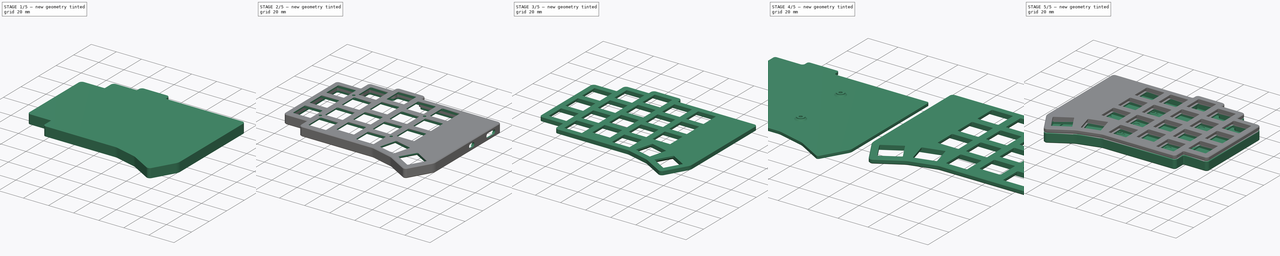
[diagram: build sequence overview — one tinted view per stage of 5, left to right]
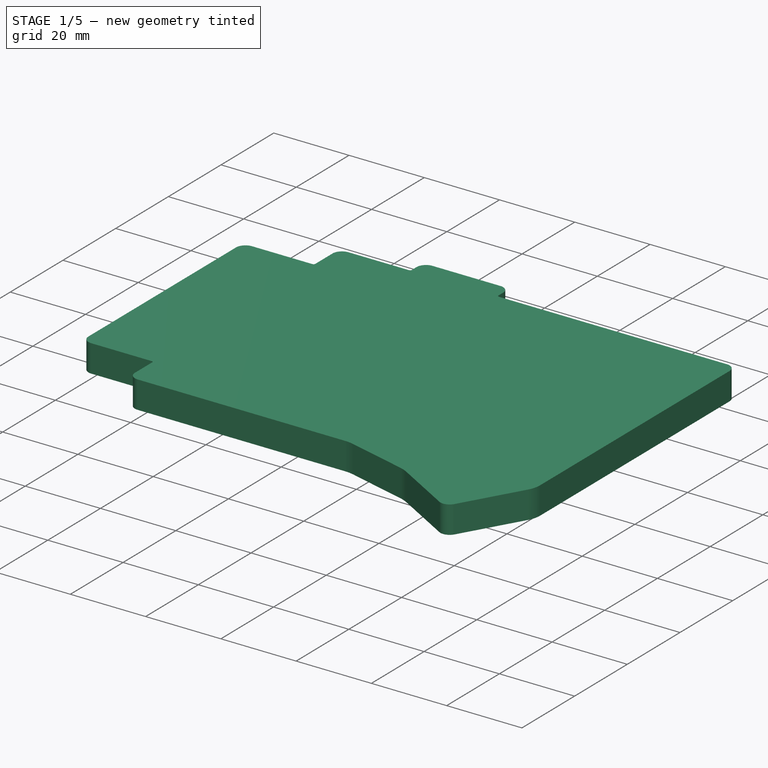
[diagram: stage 1 of 5 — iso view after this stage's code; geometry added in this stage tinted green]
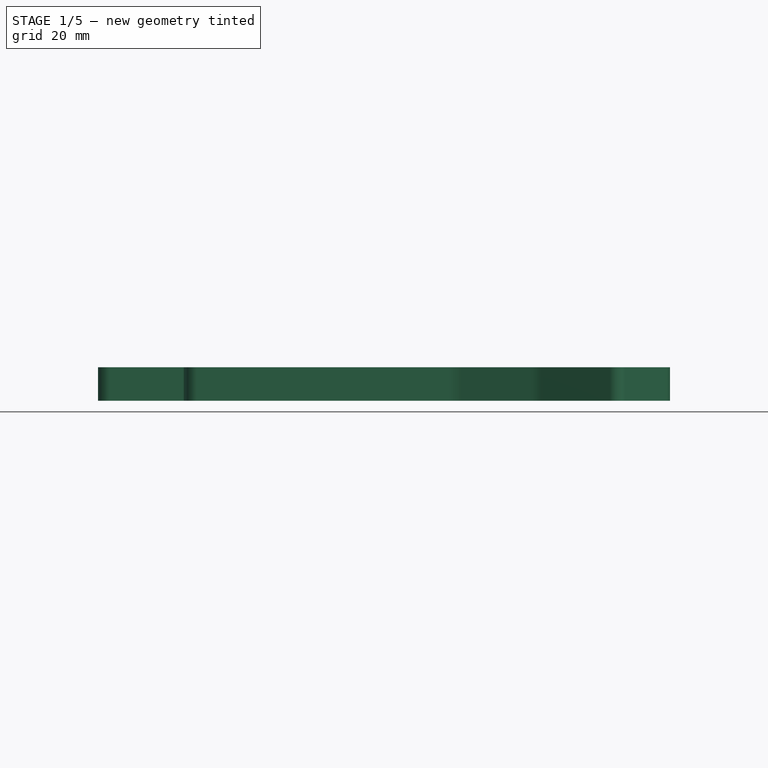
[diagram: stage 1 of 5 — front view after this stage's code; geometry added in this stage tinted green]
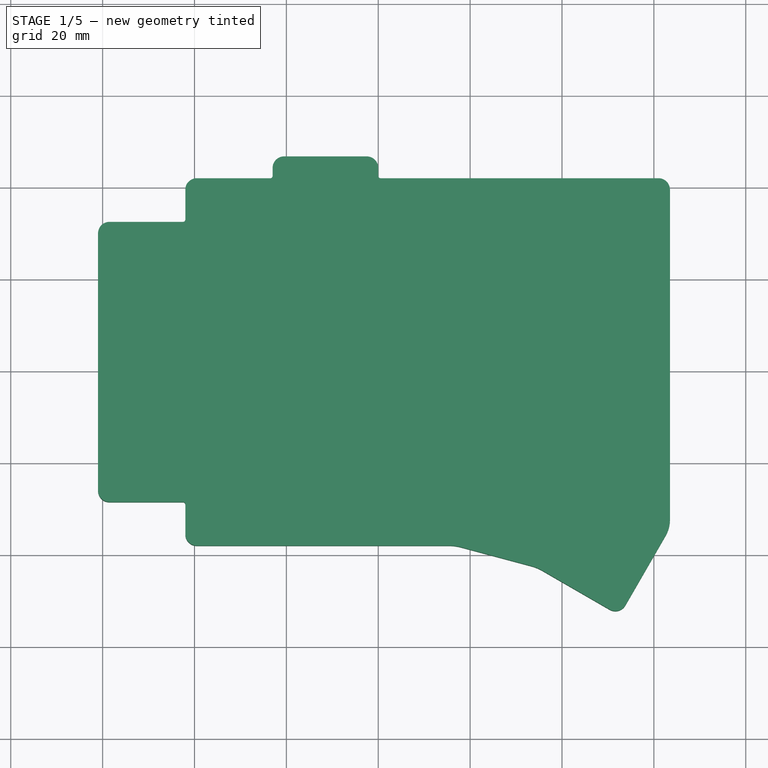
[diagram: stage 1 of 5 — top view after this stage's code; geometry added in this stage tinted green]
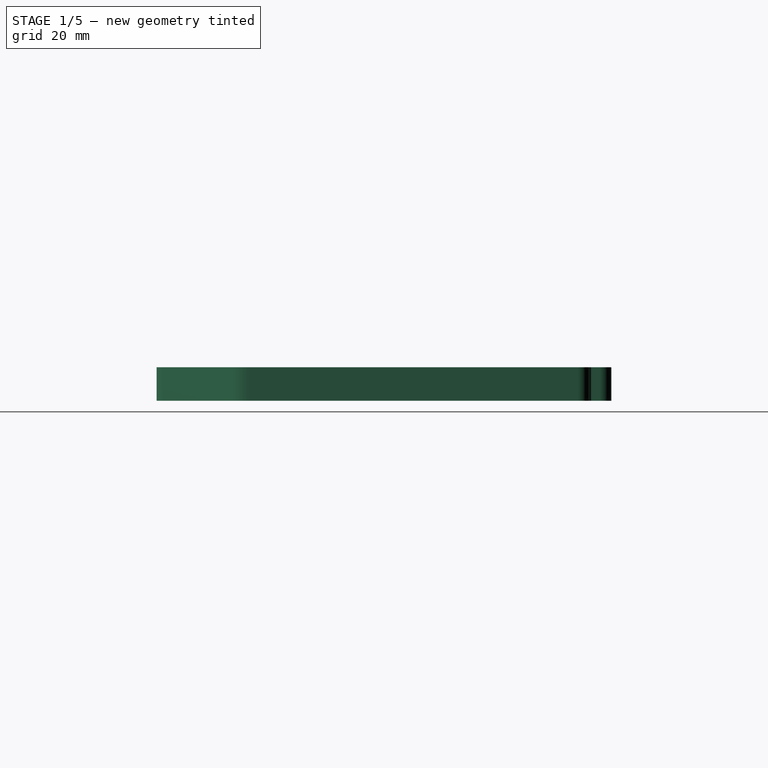
[diagram: stage 1 of 5 — right view after this stage's code; geometry added in this stage tinted green]
FCSTD DOCUMENT  (FreeCAD 1.0RUnknown)
Label: Enclosure-S
License: All rights reserved
LicenseURL: https://en.wikipedia.org/wiki/All_rights_reserved
objects: PartDesign::Fillet×12, Sketcher::SketchObject×11, PartDesign::Pocket×11, PartDesign::Chamfer×8, PartDesign::Pad×4, PartDesign::SubShapeBinder×4, PartDesign::Body×3, Part::Mirroring×3, PartDesign::Thickness×1
note: 140 computed .brp shape members not serialized (recipe doc carries the construction recipe); baked Part::Feature solids carry a one-line shape summary decoded from their .brp

FEATURE [Sketcher::SketchObject] Sketch
  ArcFitTolerance = 1e-06
  AttachmentSupport = -> [XY_Plane]
  FullyConstrained = true
  MakeInternals = false
  MapMode = 5
  expr: Constraints[29] = .Constraints.mx
  expr: Constraints[31] = .Constraints.mx / 4
  expr: Constraints[33] = .Constraints.mx / 2
  expr: Constraints[36] = .Constraints.mx * 3
  sketch-geometry (15):
    g0: LineSegment StartX=0 StartY=0 StartZ=0 EndX=19 EndY=0 EndZ=0
    g1: LineSegment StartX=19 StartY=0 StartZ=0 EndX=19 EndY=4.75 EndZ=0
    g2: LineSegment StartX=19 StartY=4.75 StartZ=0 EndX=38 EndY=4.75 EndZ=0
    g3: LineSegment StartX=38 StartY=4.75 StartZ=0 EndX=38 EndY=0 EndZ=0
    g4: LineSegment StartX=38 StartY=0 StartZ=0 EndX=101.5 EndY=0 EndZ=0
    g5: LineSegment StartX=101.5 StartY=0 StartZ=0 EndX=101.5 EndY=-73.6289 EndZ=0
    g6: LineSegment StartX=101.5 StartY=-73.6289 StartZ=0 EndX=91.8071 EndY=-90.4176 EndZ=0
    g7: LineSegment StartX=91.8071 StartY=-90.4176 StartZ=0 EndX=75.3526 EndY=-80.9176 EndZ=0
    g8: LineSegment StartX=75.3526 StartY=-80.9176 StartZ=0 EndX=57 EndY=-76 EndZ=0
    g9: LineSegment StartX=57 StartY=-76 StartZ=0 EndX=0 EndY=-76 EndZ=0
    g10: LineSegment StartX=0 StartY=-76 StartZ=0 EndX=0 EndY=-66.5 EndZ=0
    g11: LineSegment StartX=0 StartY=-66.5 StartZ=0 EndX=-19 EndY=-66.5 EndZ=0
    g12: LineSegment StartX=-19 StartY=-66.5 StartZ=0 EndX=-19 EndY=-9.5 EndZ=0
    g13: LineSegment StartX=-19 StartY=-9.5 StartZ=0 EndX=0 EndY=-9.5 EndZ=0
    g14: LineSegment StartX=0 StartY=-9.5 StartZ=0 EndX=0 EndY=0 EndZ=0
  constraints (44):
    c: Horizontal(g0)
    c: Coincident(g0,g1)
    c: Vertical(g1)
    c: Coincident(g1,g2)
    c: Horizontal(g2)
    c: Coincident(g2,g3)
    c: Vertical(g3)
    c: Coincident(g3,g4)
    c: Horizontal(g4)
    c: Coincident(g4,g5)
    c: Vertical(g5)
    c: Coincident(g5,g6)
    c: Coincident(g6,g7)
    c: Coincident(g7,g8)
    c: Coincident(g8,g9)
    c: Horizontal(g9)
    c: Coincident(g9,g10)
    c: Vertical(g10)
    c: Coincident(g10,g11)
    c: Horizontal(g11)
    c: Coincident(g11,g12)
    c: Vertical(g12)
    c: Coincident(g12,g13)
    c: Horizontal(g13)
    c: Coincident(g13,g14)
    c: Coincident(g14,g0)
    c: Vertical(g14)
    c: Distance(g2) = 19  'mx'
    c: Equal(g0,g2)
    c: Distance(g13) = 19
    c: Distance(g4) = 63.5
    c: Distance(g1) = 4.75
    c: Equal(g3,g1)
    c: Distance(g14) = 9.5
    c: Equal(g13,g11)
    c: Equal(g10,g14)
    c: Distance(g12) = 57
    c: Equal(g9,g12)
    c: Angle(g9,g8) = 2.87979
    c: Angle(g8,g7) = 2.87979
    c: Angle(g6,g7) = 1.5708
    c: Equal(g8,g2)
    c: Equal(g7,g2)
    c: Coincident(g0,g-1)
FEATURE [PartDesign::Pad] Pad  label="inbody"
  Direction = (0,0,1)
  Length = 5.3
  Length2 = 10
  Profile = -> Sketch
  ReferenceAxis = -> Sketch [N_Axis]
  Refine = true
  Suppressed = false
  Type = 0
FEATURE [PartDesign::Thickness] Thickness
  Base = -> Pad [Face16]
  BaseFeature = -> Pad
  Intersection = false
  Join = 1
  Mode = 0
  Refine = true
  SupportTransform = false
  Suppressed = false
  Value = 2
FEATURE [PartDesign::Fillet] Fillet
  Base = -> Thickness [Edge70,Edge66,Edge64,Edge61,Edge86,Edge84,Edge80,Edge74,Edge11,Edge2,Edge41,Edge32]
  BaseFeature = -> Thickness
  Radius = 2.5
  Refine = true
  SupportTransform = false
  Suppressed = false
  UseAllEdges = false
FEATURE [PartDesign::Fillet] Fillet001
  Base = -> Fillet [Edge83,Edge102,Edge89,Edge108,Edge68,Edge66,Edge3,Edge69,Edge71,Edge77,Edge78,Edge74]
  BaseFeature = -> Fillet
  Radius = 0.5
  Refine = true
  SupportTransform = false
  Suppressed = false
  UseAllEdges = false
FEATURE [PartDesign::Fillet] Fillet002
  Base = -> Fillet001 [Edge158,Edge160]
  BaseFeature = -> Fillet001
  Radius = 10
  Refine = true
  SupportTransform = false
  Suppressed = false
  UseAllEdges = false
FEATURE [PartDesign::Fillet] Fillet003
  Base = -> Fillet002 [Edge156]
  BaseFeature = -> Fillet002
  Radius = 5
  Refine = true
  SupportTransform = false
  Suppressed = false
  UseAllEdges = false
FEATURE [PartDesign::Fillet] Fillet004
  Base = -> Fillet003 [Edge73,Edge77]
  BaseFeature = -> Fillet003
  Radius = 12
  Refine = true
  SupportTransform = false
  Suppressed = false
  UseAllEdges = false
FEATURE [PartDesign::Fillet] Fillet005
  Base = -> Fillet004 [Edge143]
  BaseFeature = -> Fillet004
  Radius = 7
  Refine = true
  SupportTransform = false
  Suppressed = false
  UseAllEdges = false
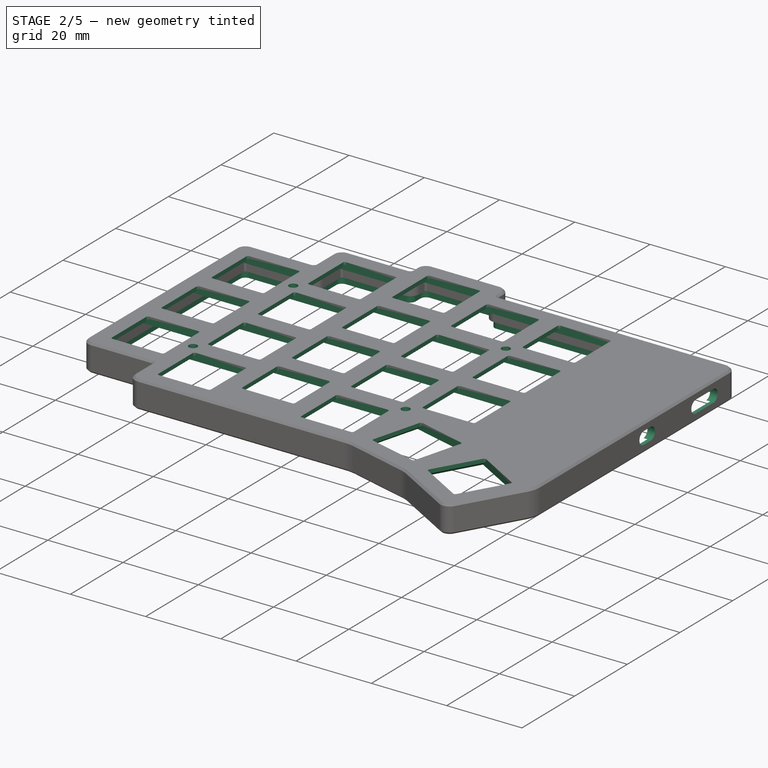
[diagram: stage 2 of 5 — iso view after this stage's code; geometry added in this stage tinted green]
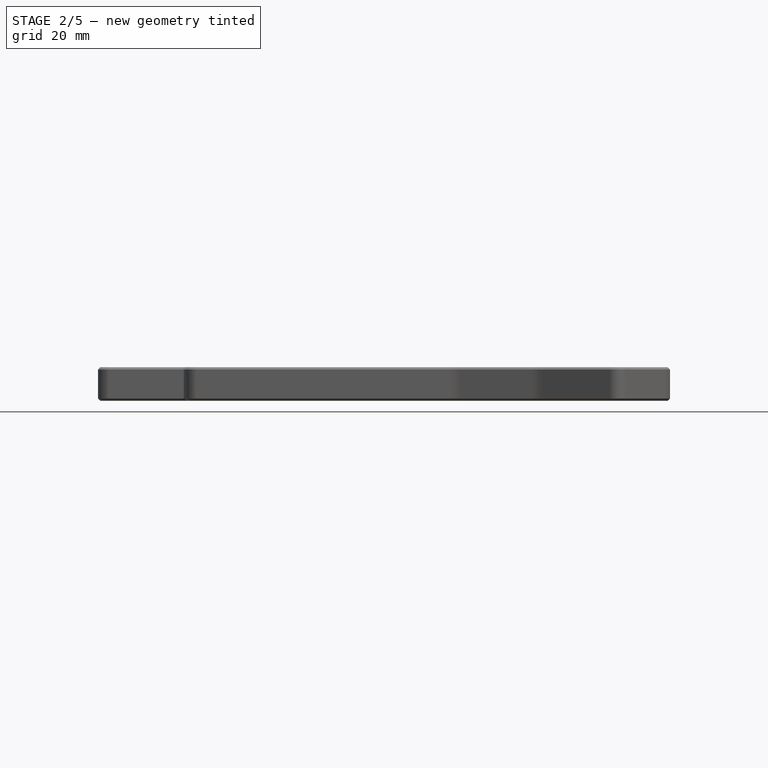
[diagram: stage 2 of 5 — front view after this stage's code; geometry added in this stage tinted green]
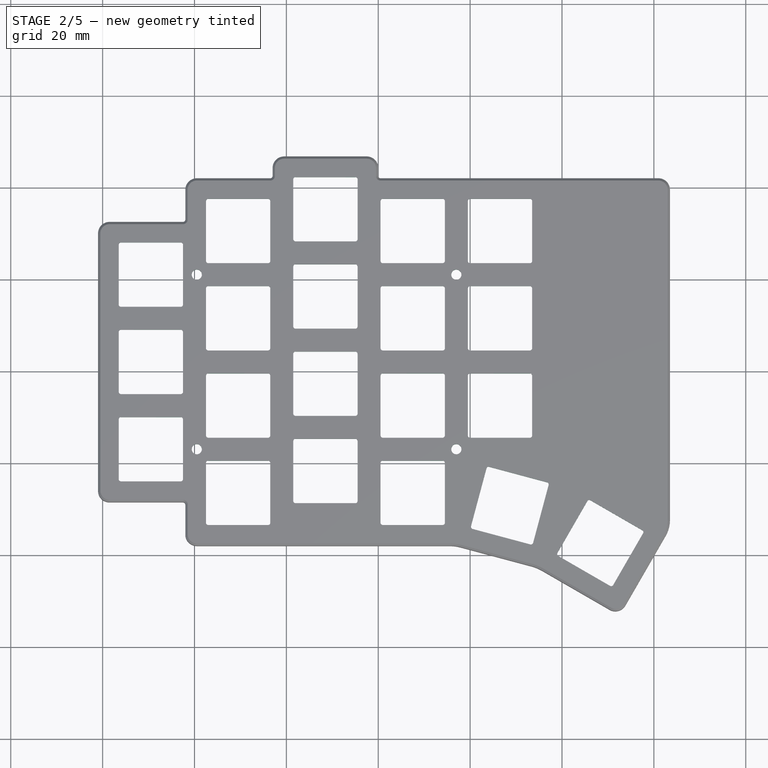
[diagram: stage 2 of 5 — top view after this stage's code; geometry added in this stage tinted green]
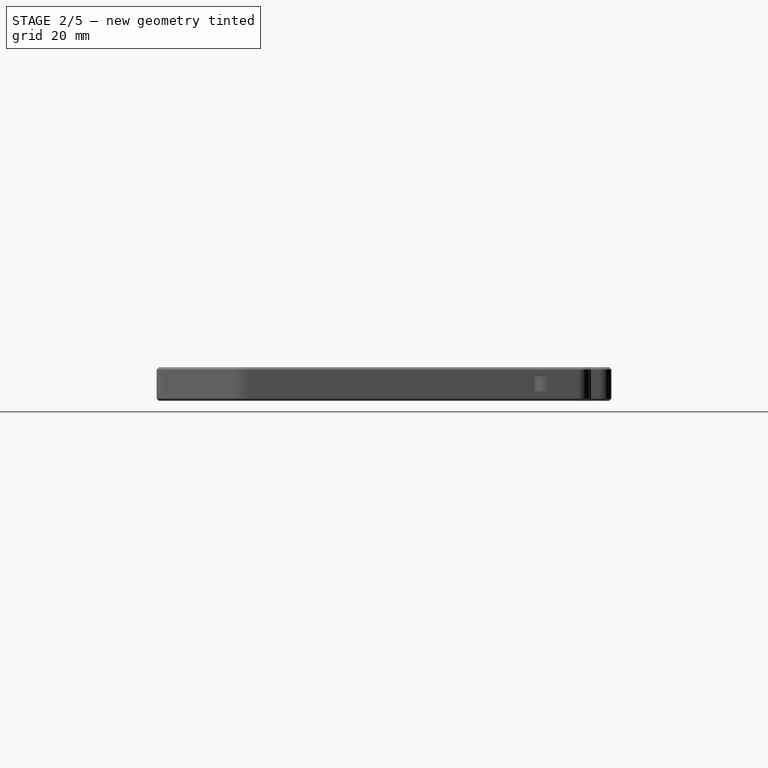
[diagram: stage 2 of 5 — right view after this stage's code; geometry added in this stage tinted green]
FEATURE [Sketcher::SketchObject] Sketch001
  ArcFitTolerance = 1e-06
  AttachmentSupport = -> [Fillet005]
  ExternalGeometry = -> [Sketch]
  FullyConstrained = true
  MakeInternals = false
  MapMode = 5
  Placement = pos=(0,0,5.3) rot=(1,0,0;3.14159rad)
  sketch-geometry (99):
    g0: LineSegment StartX=40.5 StartY=2.5 StartZ=0 EndX=54.5 EndY=2.5 EndZ=0
    g1: LineSegment StartX=54.5 StartY=2.5 StartZ=0 EndX=54.5 EndY=16.5 EndZ=0
    g2: LineSegment StartX=54.5 StartY=16.5 StartZ=0 EndX=40.5 EndY=16.5 EndZ=0
    g3: LineSegment StartX=40.5 StartY=16.5 StartZ=0 EndX=40.5 EndY=2.5 EndZ=0
    g4: LineSegment StartX=2.5 StartY=2.5 StartZ=0 EndX=16.5 EndY=2.5 EndZ=0
    g5: LineSegment StartX=16.5 StartY=2.5 StartZ=0 EndX=16.5 EndY=16.5 EndZ=0
    g6: LineSegment StartX=16.5 StartY=16.5 StartZ=0 EndX=2.5 EndY=16.5 EndZ=0
    g7: LineSegment StartX=2.5 StartY=16.5 StartZ=0 EndX=2.5 EndY=2.5 EndZ=0
    g8: LineSegment StartX=59.5 StartY=2.5 StartZ=0 EndX=73.5 EndY=2.5 EndZ=0
    g9: LineSegment StartX=73.5 StartY=2.5 StartZ=0 EndX=73.5 EndY=16.5 EndZ=0
    g10: LineSegment StartX=73.5 StartY=16.5 StartZ=0 EndX=59.5 EndY=16.5 EndZ=0
    g11: LineSegment StartX=59.5 StartY=16.5 StartZ=0 EndX=59.5 EndY=2.5 EndZ=0
    g12: LineSegment StartX=-16.5 StartY=12 StartZ=0 EndX=-2.5 EndY=12 EndZ=0
    g13: LineSegment StartX=-2.5 StartY=12 StartZ=0 EndX=-2.5 EndY=26 EndZ=0
    g14: LineSegment StartX=-2.5 StartY=26 StartZ=0 EndX=-16.5 EndY=26 EndZ=0
    g15: LineSegment StartX=-16.5 StartY=26 StartZ=0 EndX=-16.5 EndY=12 EndZ=0
    g16: LineSegment StartX=59.5 StartY=21.5 StartZ=0 EndX=73.5 EndY=21.5 EndZ=0
    g17: LineSegment StartX=73.5 StartY=21.5 StartZ=0 EndX=73.5 EndY=35.5 EndZ=0
    g18: LineSegment StartX=73.5 StartY=35.5 StartZ=0 EndX=59.5 EndY=35.5 EndZ=0
    g19: LineSegment StartX=59.5 StartY=35.5 StartZ=0 EndX=59.5 EndY=21.5 EndZ=0
    g20: LineSegment StartX=40.5 StartY=21.5 StartZ=0 EndX=54.5 EndY=21.5 EndZ=0
    g21: LineSegment StartX=54.5 StartY=21.5 StartZ=0 EndX=54.5 EndY=35.5 EndZ=0
    g22: LineSegment StartX=54.5 StartY=35.5 StartZ=0 EndX=40.5 EndY=35.5 EndZ=0
    g23: LineSegment StartX=40.5 StartY=35.5 StartZ=0 EndX=40.5 EndY=21.5 EndZ=0
    g24: LineSegment StartX=21.5 StartY=16.75 StartZ=0 EndX=35.5 EndY=16.75 EndZ=0
    g25: LineSegment StartX=35.5 StartY=16.75 StartZ=0 EndX=35.5 EndY=30.75 EndZ=0
    g26: LineSegment StartX=35.5 StartY=30.75 StartZ=0 EndX=21.5 EndY=30.75 EndZ=0
    g27: LineSegment StartX=21.5 StartY=30.75 StartZ=0 EndX=21.5 EndY=16.75 EndZ=0
    g28: LineSegment StartX=2.5 StartY=21.5 StartZ=0 EndX=16.5 EndY=21.5 EndZ=0
    g29: LineSegment StartX=16.5 StartY=21.5 StartZ=0 EndX=16.5 EndY=35.5 EndZ=0
    g30: LineSegment StartX=16.5 StartY=35.5 StartZ=0 EndX=2.5 EndY=35.5 EndZ=0
    g31: LineSegment StartX=2.5 StartY=35.5 StartZ=0 EndX=2.5 EndY=21.5 EndZ=0
    g32: LineSegment StartX=-16.5 StartY=31 StartZ=0 EndX=-2.5 EndY=31 EndZ=0
    g33: LineSegment StartX=-2.5 StartY=31 StartZ=0 EndX=-2.5 EndY=45 EndZ=0
    g34: LineSegment StartX=-2.5 StartY=45 StartZ=0 EndX=-16.5 EndY=45 EndZ=0
    g35: LineSegment StartX=-16.5 StartY=45 StartZ=0 EndX=-16.5 EndY=31 EndZ=0
    g36: LineSegment StartX=-16.5 StartY=50 StartZ=0 EndX=-2.5 EndY=50 EndZ=0
    g37: LineSegment StartX=-2.5 StartY=50 StartZ=0 EndX=-2.5 EndY=64 EndZ=0
    g38: LineSegment StartX=-2.5 StartY=64 StartZ=0 EndX=-16.5 EndY=64 EndZ=0
    g39: LineSegment StartX=-16.5 StartY=64 StartZ=0 EndX=-16.5 EndY=50 EndZ=0
    g40: LineSegment StartX=2.5 StartY=40.5 StartZ=0 EndX=16.5 EndY=40.5 EndZ=0
    g41: LineSegment StartX=16.5 StartY=40.5 StartZ=0 EndX=16.5 EndY=54.5 EndZ=0
    g42: LineSegment StartX=16.5 StartY=54.5 StartZ=0 EndX=2.5 EndY=54.5 EndZ=0
    g43: LineSegment StartX=2.5 StartY=54.5 StartZ=0 EndX=2.5 EndY=40.5 EndZ=0
    g44: LineSegment StartX=21.5 StartY=35.75 StartZ=0 EndX=35.5 EndY=35.75 EndZ=0
    g45: LineSegment StartX=35.5 StartY=35.75 StartZ=0 EndX=35.5 EndY=49.75 EndZ=0
    g46: LineSegment StartX=35.5 StartY=49.75 StartZ=0 EndX=21.5 EndY=49.75 EndZ=0
    g47: LineSegment StartX=21.5 StartY=49.75 StartZ=0 EndX=21.5 EndY=35.75 EndZ=0
    g48: LineSegment StartX=40.5 StartY=40.5 StartZ=0 EndX=54.5 EndY=40.5 EndZ=0
    g49: LineSegment StartX=54.5 StartY=40.5 StartZ=0 EndX=54.5 EndY=54.5 EndZ=0
    g50: LineSegment StartX=54.5 StartY=54.5 StartZ=0 EndX=40.5 EndY=54.5 EndZ=0
    g51: LineSegment StartX=40.5 StartY=54.5 StartZ=0 EndX=40.5 EndY=40.5 EndZ=0
    g52: LineSegment StartX=59.5 StartY=40.5 StartZ=0 EndX=73.5 EndY=40.5 EndZ=0
    g53: LineSegment StartX=73.5 StartY=40.5 StartZ=0 EndX=73.5 EndY=54.5 EndZ=0
    g54: LineSegment StartX=73.5 StartY=54.5 StartZ=0 EndX=59.5 EndY=54.5 EndZ=0
    g55: LineSegment StartX=59.5 StartY=54.5 StartZ=0 EndX=59.5 EndY=40.5 EndZ=0
    g56: LineSegment StartX=2.5 StartY=59.5 StartZ=0 EndX=16.5 EndY=59.5 EndZ=0
    g57: LineSegment StartX=16.5 StartY=59.5 StartZ=0 EndX=16.5 EndY=73.5 EndZ=0
    g58: LineSegment StartX=16.5 StartY=73.5 StartZ=0 EndX=2.5 EndY=73.5 EndZ=0
    g59: LineSegment StartX=2.5 StartY=73.5 StartZ=0 EndX=2.5 EndY=59.5 EndZ=0
    g60: LineSegment StartX=21.5 StartY=54.75 StartZ=0 EndX=35.5 EndY=54.75 EndZ=0
    g61: LineSegment StartX=35.5 StartY=54.75 StartZ=0 EndX=35.5 EndY=68.75 EndZ=0
    g62: LineSegment StartX=35.5 StartY=68.75 StartZ=0 EndX=21.5 EndY=68.75 EndZ=0
    g63: LineSegment StartX=21.5 StartY=68.75 StartZ=0 EndX=21.5 EndY=54.75 EndZ=0
    g64: LineSegment StartX=40.5 StartY=59.5 StartZ=0 EndX=54.5 EndY=59.5 EndZ=0
    g65: LineSegment StartX=54.5 StartY=59.5 StartZ=0 EndX=54.5 EndY=73.5 EndZ=0
    g66: LineSegment StartX=54.5 StartY=73.5 StartZ=0 EndX=40.5 EndY=73.5 EndZ=0
    g67: LineSegment StartX=40.5 StartY=73.5 StartZ=0 EndX=40.5 EndY=59.5 EndZ=0
    g68: LineSegment StartX=21.5 StartY=-2.25 StartZ=0 EndX=35.5 EndY=-2.25 EndZ=0
    g69: LineSegment StartX=35.5 StartY=-2.25 StartZ=0 EndX=35.5 EndY=11.75 EndZ=0
    g70: LineSegment StartX=35.5 StartY=11.75 StartZ=0 EndX=21.5 EndY=11.75 EndZ=0
    g71: LineSegment StartX=21.5 StartY=11.75 StartZ=0 EndX=21.5 EndY=-2.25 EndZ=0
    g72: LineSegment [constr] StartX=-16.5 StartY=26 StartZ=0 EndX=-16.5 EndY=31 EndZ=0
    g73: LineSegment [constr] StartX=-16.5 StartY=45 StartZ=0 EndX=-16.5 EndY=50 EndZ=0
    g74: LineSegment [constr] StartX=2.5 StartY=16.5 StartZ=0 EndX=2.5 EndY=21.5 EndZ=0
    g75: LineSegment [constr] StartX=2.5 StartY=35.5 StartZ=0 EndX=2.5 EndY=40.5 EndZ=0
    g76: LineSegment [constr] StartX=2.5 StartY=54.5 StartZ=0 EndX=2.5 EndY=59.5 EndZ=0
    g77: LineSegment [constr] StartX=21.5 StartY=11.75 StartZ=0 EndX=21.5 EndY=16.75 EndZ=0
    g78: LineSegment [constr] StartX=21.5 StartY=30.75 StartZ=0 EndX=21.5 EndY=35.75 EndZ=0
    g79: LineSegment [constr] StartX=21.5 StartY=49.75 StartZ=0 EndX=21.5 EndY=54.75 EndZ=0
    g80: LineSegment [constr] StartX=40.5 StartY=59.5 StartZ=0 EndX=40.5 EndY=54.5 EndZ=0
    g81: LineSegment [constr] StartX=40.5 StartY=40.5 StartZ=0 EndX=40.5 EndY=35.5 EndZ=0
    g82: LineSegment [constr] StartX=40.5 StartY=16.5 StartZ=0 EndX=40.5 EndY=21.5 EndZ=0
    g83: LineSegment [constr] StartX=54.5 StartY=16.5 StartZ=0 EndX=59.5 EndY=16.5 EndZ=0
    g84: LineSegment [constr] StartX=54.5 StartY=35.5 StartZ=0 EndX=59.5 EndY=35.5 EndZ=0
    g85: LineSegment [constr] StartX=54.5 StartY=54.5 StartZ=0 EndX=59.5 EndY=54.5 EndZ=0
    g86: LineSegment StartX=60.0619 StartY=74.2322 StartZ=0 EndX=73.5848 EndY=77.8557 EndZ=0
    g87: LineSegment StartX=73.5848 StartY=77.8557 StartZ=0 EndX=77.2083 EndY=64.3327 EndZ=0
    g88: LineSegment StartX=77.2083 StartY=64.3327 StartZ=0 EndX=63.6853 EndY=60.7093 EndZ=0
    g89: LineSegment StartX=63.6853 StartY=60.7093 StartZ=0 EndX=60.0619 EndY=74.2322 EndZ=0
    g90: LineSegment StartX=78.7677 StartY=80.0025 StartZ=0 EndX=90.892 EndY=87.0025 EndZ=0
    g91: LineSegment StartX=90.892 StartY=87.0025 StartZ=0 EndX=97.892 EndY=74.8781 EndZ=0
    g92: LineSegment StartX=97.892 StartY=74.8781 StartZ=0 EndX=85.7677 EndY=67.8781 EndZ=0
    g93: LineSegment StartX=85.7677 StartY=67.8781 StartZ=0 EndX=78.7677 EndY=80.0025 EndZ=0
    g94: LineSegment [constr] StartX=60.0619 StartY=74.2322 StartZ=0 EndX=59.4148 EndY=76.647 EndZ=0
    g95: LineSegment [constr] StartX=78.7677 StartY=80.0025 StartZ=0 EndX=77.5177 EndY=82.1676 EndZ=0
    g96: LineSegment [constr] StartX=60.0619 StartY=74.2322 StartZ=0 EndX=57 EndY=76 EndZ=0
    g97: LineSegment [constr] StartX=73.5848 StartY=77.8557 StartZ=0 EndX=75.3526 EndY=80.9176 EndZ=0
    g98: LineSegment [constr] StartX=90.892 StartY=87.0025 StartZ=0 EndX=93.0571 EndY=88.2525 EndZ=0
  constraints (281):
    c: Coincident(g0,g1)
    c: Coincident(g1,g2)
    c: Coincident(g2,g3)
    c: Coincident(g3,g0)
    c: Horizontal(g0)
    c: Horizontal(g2)
    c: Vertical(g1)
    c: Vertical(g3)
    c: Equal(g0,g3)
    c: Coincident(g4,g5)
    c: Coincident(g5,g6)
    c: Coincident(g6,g7)
    c: Coincident(g7,g4)
    c: Horizontal(g4)
    c: Horizontal(g6)
    c: Vertical(g5)
    c: Vertical(g7)
    c: Distance(g4) = 14
    c: Equal(g4,g7)
    c: Coincident(g8,g9)
    c: Coincident(g9,g10)
    c: Coincident(g10,g11)
    c: Coincident(g11,g8)
    c: Horizontal(g8)
    c: Horizontal(g10)
    c: Vertical(g9)
    c: Vertical(g11)
    c: Equal(g8,g11)
    c: Coincident(g12,g13)
    c: Coincident(g13,g14)
    c: Coincident(g14,g15)
    c: Coincident(g15,g12)
    c: Horizontal(g12)
    c: Horizontal(g14)
    c: Vertical(g13)
    c: Vertical(g15)
    c: Equal(g12,g15)
    c: Coincident(g16,g17)
    c: Coincident(g17,g18)
    c: Coincident(g18,g19)
    c: Coincident(g19,g16)
    c: Horizontal(g16)
    c: Horizontal(g18)
    c: Vertical(g17)
    c: Vertical(g19)
    c: Equal(g16,g19)
    c: Coincident(g20,g21)
    c: Coincident(g21,g22)
    c: Coincident(g22,g23)
    c: Coincident(g23,g20)
    c: Horizontal(g20)
    c: Horizontal(g22)
    c: Vertical(g21)
    c: Vertical(g23)
    c: Equal(g20,g23)
    c: Coincident(g24,g25)
    c: Coincident(g25,g26)
    c: Coincident(g26,g27)
    c: Coincident(g27,g24)
    c: Horizontal(g24)
    c: Horizontal(g26)
    c: Vertical(g25)
    c: Vertical(g27)
    c: Equal(g24,g27)
    c: Coincident(g28,g29)
    c: Coincident(g29,g30)
    c: Coincident(g30,g31)
    c: Coincident(g31,g28)
    c: Horizontal(g28)
    c: Horizontal(g30)
    c: Vertical(g29)
    c: Vertical(g31)
    c: Equal(g28,g31)
    c: Coincident(g32,g33)
    c: Coincident(g33,g34)
    c: Coincident(g34,g35)
    c: Coincident(g35,g32)
    c: Horizontal(g32)
    c: Horizontal(g34)
    c: Vertical(g33)
    c: Vertical(g35)
    c: Equal(g32,g35)
    c: Coincident(g36,g37)
    c: Coincident(g37,g38)
    c: Coincident(g38,g39)
    c: Coincident(g39,g36)
    c: Horizontal(g36)
    c: Horizontal(g38)
    c: Vertical(g37)
    c: Vertical(g39)
    c: Equal(g36,g39)
    c: Coincident(g40,g41)
    c: Coincident(g41,g42)
    c: Coincident(g42,g43)
    c: Coincident(g43,g40)
    c: Horizontal(g40)
    c: Horizontal(g42)
    c: Vertical(g41)
    c: Vertical(g43)
    c: Equal(g40,g43)
    c: Coincident(g44,g45)
    c: Coincident(g45,g46)
    c: Coincident(g46,g47)
    c: Coincident(g47,g44)
    c: Horizontal(g44)
    c: Horizontal(g46)
    c: Vertical(g45)
    c: Vertical(g47)
    c: Equal(g44,g47)
    c: Coincident(g48,g49)
    c: Coincident(g49,g50)
    c: Coincident(g50,g51)
    c: Coincident(g51,g48)
    c: Horizontal(g48)
    c: Horizontal(g50)
    c: Vertical(g49)
    c: Vertical(g51)
    c: Equal(g48,g51)
    c: Coincident(g52,g53)
    c: Coincident(g53,g54)
    c: Coincident(g54,g55)
    c: Coincident(g55,g52)
    c: Horizontal(g52)
    c: Horizontal(g54)
    c: Vertical(g53)
    c: Vertical(g55)
    c: Equal(g52,g55)
    c: Coincident(g56,g57)
    c: Coincident(g57,g58)
    c: Coincident(g58,g59)
    c: Coincident(g59,g56)
    c: Horizontal(g56)
    c: Horizontal(g58)
    c: Vertical(g57)
    c: Vertical(g59)
    c: Equal(g56,g59)
    c: Coincident(g60,g61)
    c: Coincident(g61,g62)
    c: Coincident(g62,g63)
    c: Coincident(g63,g60)
    c: Horizontal(g60)
    c: Horizontal(g62)
    c: Vertical(g61)
    c: Vertical(g63)
    c: Equal(g60,g63)
    c: Coincident(g64,g65)
    c: Coincident(g65,g66)
    c: Coincident(g66,g67)
    c: Coincident(g67,g64)
    c: Horizontal(g64)
    c: Horizontal(g66)
    c: Vertical(g65)
    c: Vertical(g67)
    c: Equal(g64,g67)
    c: Coincident(g68,g69)
    c: Coincident(g69,g70)
    c: Coincident(g70,g71)
    c: Coincident(g71,g68)
    c: Horizontal(g68)
    c: Horizontal(g70)
    c: Vertical(g69)
    c: Vertical(g71)
    c: Equal(g68,g71)
    c: Equal(g8,g0)
    c: Equal(g0,g68)
    c: Equal(g68,g4)
    c: Equal(g4,g12)
    c: Equal(g36,g32)
    c: Equal(g32,g40)
    c: Equal(g40,g56)
    c: Equal(g56,g28)
    c: Equal(g28,g44)
    c: Equal(g44,g24)
    c: Equal(g24,g64)
    c: Equal(g64,g48)
    c: Equal(g48,g20)
    c: Equal(g20,g60)
    c: Equal(g52,g16)
    c: DistanceX(g4) = 2.5
    c: DistanceY(g4) = 2.5
    c: DistanceX(g-4,g0) = 2.5
    c: DistanceY(g-4,g0) = 2.5
    c: DistanceX(g-3,g68) = 2.5
    c: DistanceY(g-3,g68) = 2.5
    c: DistanceX(g-5,g12) = -2.5
    c: DistanceY(g-5,g12) = 2.5
    c: Coincident(g72,g14)
    c: Coincident(g72,g32)
    c: Coincident(g73,g34)
    c: Coincident(g73,g36)
    c: Coincident(g74,g6)
    c: Coincident(g74,g28)
    c: Coincident(g75,g30)
    c: Coincident(g75,g40)
    c: Vertical(g75)
    c: Coincident(g76,g42)
    c: Coincident(g76,g56)
    c: Coincident(g77,g70)
    c: Coincident(g77,g24)
    c: Coincident(g78,g26)
    c: Coincident(g78,g44)
    c: Coincident(g79,g46)
    c: Coincident(g79,g60)
    c: Coincident(g80,g64)
    c: Coincident(g80,g50)
    c: Coincident(g81,g48)
    c: Coincident(g81,g22)
    c: Coincident(g82,g2)
    c: Coincident(g82,g20)
    c: Coincident(g83,g1)
    c: Coincident(g83,g10)
    c: Coincident(g84,g21)
    c: Coincident(g84,g18)
    c: Coincident(g85,g49)
    c: Coincident(g85,g54)
    c: Vertical(g73)
    c: Vertical(g72)
    c: Vertical(g74)
    c: Vertical(g76)
    c: Vertical(g79)
    c: Vertical(g78)
    c: Vertical(g77)
    c: Vertical(g82)
    c: Vertical(g81)
    c: Vertical(g80)
    c: Horizontal(g83)
    c: Horizontal(g84)
    c: Horizontal(g85)
    c: Equal(g83,g84)
    c: Equal(g84,g85)
    c: Equal(g85,g80)
    c: Equal(g80,g81)
    c: Equal(g81,g82)
    c: Equal(g82,g77)
    c: Equal(g77,g74)
    c: Equal(g74,g72)
    c: Equal(g72,g73)
    c: Equal(g73,g75)
    c: Equal(g75,g78)
    c: Equal(g78,g79)
    c: Equal(g79,g76)
    c: Distance(g74) = 5
    c: Coincident(g86,g87)
    c: Coincident(g87,g88)
    c: Coincident(g88,g89)
    c: Coincident(g89,g86)
    c: Coincident(g90,g91)
    c: Coincident(g91,g92)
    c: Coincident(g92,g93)
    c: Coincident(g93,g90)
    c: Perpendicular(g89,g86)
    c: Perpendicular(g87,g86)
    c: Perpendicular(g88,g87)
    c: Perpendicular(g90,g93)
    c: Perpendicular(g91,g90)
    c: Perpendicular(g91,g92)
    c: Equal(g92,g93)
    c: Equal(g93,g88)
    c: Equal(g88,g89)
    c: Equal(g89,g4)
    c: Parallel(g-6,g86)
    c: Parallel(g-7,g90)
    c: Coincident(g94,g86)
    c: PointOnObject(g94,g-6)
    c: Coincident(g95,g90)
    c: PointOnObject(g95,g-7)
    c: Perpendicular(g94,g-6)
    c: Perpendicular(g95,g-7)
    c: Distance(g94) = 2.5
    c: Equal(g94,g95)
    c: Coincident(g96,g86)
    c: Coincident(g96,g-6)
    c: Coincident(g97,g86)
    c: Coincident(g97,g-7)
    c: Coincident(g98,g90)
    c: PointOnObject(g98,g-8)
    c: Perpendicular(g-8,g98)
    c: Equal(g98,g94)
    c: Equal(g96,g97)
    c: Equal(g55,g4)
    c: Equal(g33,g4)
FEATURE [PartDesign::Pocket] Pocket
  BaseFeature = -> Fillet005
  Direction = (0,0,1)
  Length = 2
  Length2 = 5
  Profile = -> Sketch001
  ReferenceAxis = -> Sketch001 [N_Axis]
  Refine = true
  Suppressed = false
  Type = 0
FEATURE [Sketcher::SketchObject] Sketch004
  ArcFitTolerance = 1e-06
  ExternalGeometry = -> [Sketch]
  FullyConstrained = true
  MakeInternals = false
  MapMode = 5
  Placement = pos=(101.5,0,0) rot=(0.57735,-0.57735,-0.57735;2.0944rad)
  expr: Constraints[19] = <<inbody>>.Length
  sketch-geometry (18):
    g0: ArcOfCircle CenterX=6.655 CenterY=3.645 CenterZ=0 NormalX=0 NormalY=0 NormalZ=1 AngleXU=0 Radius=1.655 StartAngle=1.5708 EndAngle=4.71239
    g1: ArcOfCircle CenterX=13.345 CenterY=3.645 CenterZ=0 NormalX=0 NormalY=0 NormalZ=1 AngleXU=0 Radius=1.655 StartAngle=4.71239 EndAngle=7.85398
    g2: LineSegment StartX=6.655 StartY=5.3 StartZ=0 EndX=13.345 EndY=5.3 EndZ=0
    g3: LineSegment StartX=6.655 StartY=1.99 StartZ=0 EndX=13.345 EndY=1.99 EndZ=0
    g4: GeomPoint X=5 Y=3.645 Z=0
    g5: GeomPoint X=15 Y=3.645 Z=0
    g6: GeomPoint X=10 Y=3.645 Z=0
    g7: LineSegment [constr] StartX=6.655 StartY=3.645 StartZ=0 EndX=10 EndY=3.645 EndZ=0
    g8: LineSegment [constr] StartX=10 StartY=3.645 StartZ=0 EndX=13.345 EndY=3.645 EndZ=0
    g9: ArcOfCircle CenterX=30.45 CenterY=3.645 CenterZ=0 NormalX=0 NormalY=0 NormalZ=1 AngleXU=0 Radius=1.655 StartAngle=1.5708 EndAngle=4.71239
    g10: ArcOfCircle CenterX=33.05 CenterY=3.645 CenterZ=0 NormalX=0 NormalY=0 NormalZ=1 AngleXU=0 Radius=1.655 StartAngle=4.71239 EndAngle=7.85398
    g11: LineSegment StartX=30.45 StartY=5.3 StartZ=0 EndX=33.05 EndY=5.3 EndZ=0
    g12: LineSegment StartX=30.45 StartY=1.99 StartZ=0 EndX=33.05 EndY=1.99 EndZ=0
    g13: GeomPoint X=28.795 Y=3.645 Z=0
    g14: GeomPoint X=34.705 Y=3.645 Z=0
    g15: GeomPoint [constr] X=31.75 Y=3.645 Z=0
    g16: LineSegment [constr] StartX=30.45 StartY=3.645 StartZ=0 EndX=31.75 EndY=3.645 EndZ=0
    g17: LineSegment [constr] StartX=31.75 StartY=3.645 StartZ=0 EndX=33.05 EndY=3.645 EndZ=0
  constraints (40):
    c: Tangent(g0,g2) = 1.5708
    c: Tangent(g0,g3) = -1.5708
    c: Tangent(g1,g2) = 1.5708
    c: Tangent(g1,g3) = -1.5708
    c: Equal(g0,g1)
    c: Horizontal(g2)
    c: Distance(g0,g0) = 3.31
    c: PointOnObject(g4,g0)
    c: PointOnObject(g5,g1)
    c: Horizontal(g5,g1)
    c: Horizontal(g4,g0)
    c: Distance(g4,g5) = 10
    c: Coincident(g7,g0)
    c: Coincident(g7,g6)
    c: Coincident(g8,g6)
    c: Coincident(g8,g1)
    c: Equal(g8,g7)
    c: Parallel(g8,g7)
    c: DistanceX(g-1,g6) = 10
    c: DistanceY(g-1,g0) = 5.3
    c: Tangent(g9,g11) = 1.5708
    c: Tangent(g9,g12) = -1.5708
    c: Tangent(g10,g11) = 1.5708
    c: Tangent(g10,g12) = -1.5708
    c: Equal(g9,g10)
    c: Horizontal(g11)
    c: Distance(g10,g10) = 3.31
    c: PointOnObject(g13,g9)
    c: PointOnObject(g14,g10)
    c: Horizontal(g9,g13)
    c: Horizontal(g14,g10)
    c: DistanceY(g-1,g9) = 5.3
    c: Coincident(g16,g9)
    c: Coincident(g16,g15)
    c: Coincident(g17,g15)
    c: Coincident(g17,g10)
    c: Equal(g17,g16)
    c: Horizontal(g16)
    c: DistanceX(g-1,g15) = 31.75
    c: Distance(g11) = 2.6
FEATURE [PartDesign::SubShapeBinder] Binder001
  BindCopyOnChange = 0
  BindMode = 0
  ClaimChildren = false
  Context = -> Body001 [Binder001.]
  Fuse = false
  MakeFace = true
  Offset = 0.8
  OffsetFill = false
  OffsetIntersection = false
  OffsetJoinType = 0
  OffsetOpenResult = false
  PartialLoad = false
  Placement = pos=(0,0,-5.3) rot=(0,0,1;0rad)
  Refine = true
  Relative = true
  Support = -> [Body[Fillet005.Face63]]
  _Version = 2
  expr: .Placement.Base.z = -<<inbody>>.Length
FEATURE [PartDesign::SubShapeBinder] Binder002
  BindCopyOnChange = 0
  BindMode = 0
  ClaimChildren = false
  Context = -> Body001 [Binder002.]
  Fuse = false
  MakeFace = true
  Offset = -1.4
  OffsetFill = false
  OffsetIntersection = false
  OffsetJoinType = 0
  OffsetOpenResult = false
  PartialLoad = false
  Refine = true
  Relative = true
  Support = -> [Sketch007]
  _Version = 2
FEATURE [Sketcher::SketchObject] Sketch010
  ArcFitTolerance = 1e-06
  FullyConstrained = true
  MakeInternals = false
  MapMode = 5
  Placement = pos=(0,0,-4.4e-15) rot=(1,0,0;3.14159rad)
  sketch-geometry (37):
    g0: ArcOfCircle CenterX=-13.9 CenterY=61.4 CenterZ=0 NormalX=0 NormalY=0 NormalZ=1 AngleXU=0 Radius=3.1 StartAngle=1.5708 EndAngle=4.71239
    g1: ArcOfCircle CenterX=-7.9 CenterY=61.4 CenterZ=0 NormalX=0 NormalY=0 NormalZ=1 AngleXU=0 Radius=3.1 StartAngle=4.71239 EndAngle=7.85398
    g2: LineSegment StartX=-13.9 StartY=64.5 StartZ=0 EndX=-7.9 EndY=64.5 EndZ=0
    g3: LineSegment StartX=-13.9 StartY=58.3 StartZ=0 EndX=-7.9 EndY=58.3 EndZ=0
    g4: GeomPoint X=-17 Y=61.4 Z=0
    g5: GeomPoint X=-4.8 Y=61.4 Z=0
    g6: GeomPoint X=-19 Y=66.5 Z=0
    g7: ArcOfCircle CenterX=-13.9 CenterY=14.6 CenterZ=0 NormalX=0 NormalY=0 NormalZ=1 AngleXU=0 Radius=3.1 StartAngle=1.5708 EndAngle=4.71239
    g8: ArcOfCircle CenterX=-7.9 CenterY=14.6 CenterZ=0 NormalX=0 NormalY=0 NormalZ=1 AngleXU=0 Radius=3.1 StartAngle=4.71239 EndAngle=7.85398
    g9: LineSegment StartX=-13.9 StartY=17.7 StartZ=0 EndX=-7.9 EndY=17.7 EndZ=0
    g10: LineSegment StartX=-13.9 StartY=11.5 StartZ=0 EndX=-7.9 EndY=11.5 EndZ=0
    g11: ArcOfCircle CenterX=90.4 CenterY=5.1 CenterZ=0 NormalX=0 NormalY=0 NormalZ=1 AngleXU=0 Radius=3.1 StartAngle=1.5708 EndAngle=4.71239
    g12: ArcOfCircle CenterX=96.4 CenterY=5.1 CenterZ=0 NormalX=0 NormalY=0 NormalZ=1 AngleXU=0 Radius=3.1 StartAngle=4.71239 EndAngle=7.85398
    g13: LineSegment StartX=90.4 StartY=8.2 StartZ=0 EndX=96.4 EndY=8.2 EndZ=0
    g14: LineSegment StartX=90.4 StartY=2 StartZ=0 EndX=96.4 EndY=2 EndZ=0
    g15: ArcOfCircle CenterX=84.7442 CenterY=80.4508 CenterZ=0 NormalX=0 NormalY=0 NormalZ=1 AngleXU=0 Radius=3.1 StartAngle=2.0944 EndAngle=5.23599
    g16: ArcOfCircle CenterX=89.9403 CenterY=83.4508 CenterZ=0 NormalX=0 NormalY=0 NormalZ=1 AngleXU=0 Radius=3.1 StartAngle=5.23599 EndAngle=8.37758
    g17: LineSegment StartX=83.1942 StartY=83.1355 StartZ=0 EndX=88.3903 EndY=86.1355 EndZ=0
    g18: LineSegment StartX=86.2942 StartY=77.7662 StartZ=0 EndX=91.4903 EndY=80.7662 EndZ=0
    g19: GeomPoint X=-19 Y=9.5 Z=0
    g20: GeomPoint X=101.5 Y=0 Z=0
    g21: GeomPoint X=99.5 Y=5.1 Z=0
    g22: GeomPoint X=91.8071 Y=90.4176 Z=0
    g23: GeomPoint X=92.625 Y=85.0008 Z=0
    g24: LineSegment [constr] StartX=88.3903 StartY=86.1355 StartZ=0 EndX=89.9403 EndY=83.4508 EndZ=0
    g25: LineSegment [constr] StartX=89.9403 StartY=83.4508 StartZ=0 EndX=92.625 EndY=85.0008 EndZ=0
    g26: LineSegment [constr] StartX=88.3903 StartY=86.1355 StartZ=0 EndX=87.3903 EndY=87.8676 EndZ=0
    g27: LineSegment [constr] StartX=91.8071 StartY=90.4176 StartZ=0 EndX=87.3903 EndY=87.8676 EndZ=0
    g28: LineSegment [constr] StartX=92.625 StartY=85.0008 StartZ=0 EndX=94.3571 EndY=86.0008 EndZ=0
    g29: LineSegment [constr] StartX=94.3571 StartY=86.0008 StartZ=0 EndX=91.8071 EndY=90.4176 EndZ=0
    g30: GeomPoint X=-17 Y=14.6 Z=0
    g31: LineSegment [constr] StartX=-17 StartY=14.6 StartZ=0 EndX=-13.9 EndY=14.6 EndZ=0
    g32: LineSegment [constr] StartX=-13.9 StartY=14.6 StartZ=0 EndX=-13.9 EndY=11.5 EndZ=0
    g33: LineSegment [constr] StartX=-17 StartY=61.4 StartZ=0 EndX=-13.9 EndY=61.4 EndZ=0
    g34: LineSegment [constr] StartX=-13.9 StartY=61.4 StartZ=0 EndX=-13.9 EndY=58.3 EndZ=0
    g35: LineSegment [constr] StartX=-7.9 StartY=61.4 StartZ=0 EndX=-4.8 EndY=61.4 EndZ=0
    g36: LineSegment [constr] StartX=-7.9 StartY=61.4 StartZ=0 EndX=-7.9 EndY=64.5 EndZ=0
  constraints (84):
    c: Tangent(g0,g2) = 1.5708
    c: Tangent(g0,g3) = -1.5708
    c: Tangent(g1,g2) = 1.5708
    c: Tangent(g1,g3) = -1.5708
    c: Equal(g0,g1)
    c: PointOnObject(g4,g0)
    c: PointOnObject(g5,g1)
    c: Distance(g0,g0) = 6.2
    c: Distance(g4,g5) = 12.2
    c: DistanceX(g6) = -19
    c: DistanceY(g6) = 66.5
    c: Tangent(g7,g9) = 1.5708
    c: Tangent(g7,g10) = -1.5708
    c: Tangent(g8,g9) = 1.5708
    c: Tangent(g8,g10) = -1.5708
    c: Equal(g7,g8)
    c: Equal(g9,g2)
    c: Equal(g8,g1)
    c: Tangent(g11,g13) = 1.5708
    c: Tangent(g11,g14) = -1.5708
    c: Tangent(g12,g13) = 1.5708
    c: Tangent(g12,g14) = -1.5708
    c: Equal(g11,g12)
    c: Horizontal(g13)
    c: Equal(g2,g13)
    c: Equal(g12,g1)
    c: Tangent(g15,g17) = 1.5708
    c: Tangent(g15,g18) = -1.5708
    c: Tangent(g16,g17) = 1.5708
    c: Tangent(g16,g18) = -1.5708
    c: Equal(g15,g16)
    c: Equal(g17,g2)
    c: Equal(g16,g1)
    c: DistanceX(g19) = -19
    c: DistanceY(g19) = 9.5
    c: PointOnObject(g20,g-1)
    c: Distance(g-1,g20) = 101.5
    c: PointOnObject(g21,g12)
    c: Horizontal(g21,g12)
    c: DistanceY(g20,g12) = 2
    c: DistanceX(g21,g20) = 2
    c: DistanceX(g22) = 91.8071
    c: DistanceY(g22) = 90.4176
    c: Angle(g17) = 0.523599
    c: PointOnObject(g23,g16)
    c: Coincident(g24,g16)
    c: Coincident(g24,g16)
    c: Coincident(g25,g16)
    c: Coincident(g25,g23)
    c: Perpendicular(g24,g25)
    c: Coincident(g26,g16)
    c: Coincident(g27,g22)
    c: Coincident(g27,g26)
    c: Coincident(g28,g23)
    c: Coincident(g29,g28)
    c: Coincident(g29,g22)
    c: Perpendicular(g27,g26)
    c: Parallel(g24,g26)
    c: Parallel(g25,g28)
    c: Perpendicular(g29,g28)
    c: Distance(g28) = 2
    c: Equal(g28,g26)
    c: PointOnObject(g30,g7)
    c: Coincident(g31,g30)
    c: Coincident(g31,g7)
    c: Coincident(g32,g7)
    c: Coincident(g32,g7)
    c: Perpendicular(g32,g31)
    c: Coincident(g33,g4)
    c: Coincident(g33,g0)
    c: Coincident(g34,g0)
    c: Coincident(g34,g0)
    c: Perpendicular(g33,g34)
    c: Coincident(g35,g1)
    c: Coincident(g35,g5)
    c: Coincident(g36,g1)
    c: Coincident(g36,g1)
    c: Perpendicular(g35,g36)
    c: Horizontal(g3)
    c: DistanceY(g0,g6) = 2
    c: DistanceX(g6,g4) = 2
    c: Horizontal(g10)
    c: DistanceY(g19,g7) = 2
    c: DistanceX(g19,g30) = 2
FEATURE [PartDesign::SubShapeBinder] Binder
  BindCopyOnChange = 0
  BindMode = 0
  ClaimChildren = false
  Context = -> Body [Binder.]
  Fuse = false
  MakeFace = true
  Offset = 1
  OffsetFill = false
  OffsetIntersection = false
  OffsetJoinType = 0
  OffsetOpenResult = false
  PartialLoad = false
  Placement = pos=(0,0,-5.3) rot=(0,0,1;0rad)
  Refine = true
  Relative = true
  Support = -> [Fillet005[Face63]]
  _Version = 2
  expr: .Placement.Base.z = -<<inbody>>.Length
FEATURE [PartDesign::Chamfer] Chamfer013
  Angle = 45
  Base = -> Pocket [Edge339,Edge337,Edge335,Edge333,Edge323,Edge321,Edge319,Edge317,Edge315,Edge313,Edge301,Edge305,Edge303,Edge307,Edge309,Edge311,Edge325,Edge327,Edge329,Edge331,Edge265,Edge267,Edge269,Edge271,Edge277,Edge279,Edge293,Edge295,Edge297,Edge299,Edge261,Edge263,Edge273,Edge275,Edge281,Edge283,Edge288,Edge286,Edge292,Edge290]
  BaseFeature = -> Pocket
  ChamferType = 1
  FlipDirection = false
  Refine = true
  Size = 1.2
  Size2 = 1
  SupportTransform = false
  Suppressed = false
  UseAllEdges = false
FEATURE [PartDesign::Fillet] Fillet007
  Base = -> Chamfer013 [Edge299,Edge287,Edge275,Edge263,Edge191,Edge366,Edge354,Edge342,Edge330,Edge318,Edge378,Edge390,Edge402,Edge414,Edge426,Edge462,Edge450,Edge438,Edge470,Edge482,Edge479,Edge467,Edge464,Edge452,Edge440,Edge380,Edge320,Edge392,Edge404,Edge416,Edge428,Edge332,Edge344,Edge356,Edge368,Edge194,Edge266,Edge278,Edge290,Edge302,+40 more]
  BaseFeature = -> Chamfer013
  Radius = 0.5
  Refine = true
  SupportTransform = false
  Suppressed = false
  UseAllEdges = false
FEATURE [PartDesign::Pocket] Pocket001
  BaseFeature = -> Fillet007
  Direction = (0,0,-1)
  Length = 2
  Length2 = 5
  Profile = -> Binder
  Refine = true
  Reversed = true
  Suppressed = false
  Type = 0
FEATURE [Sketcher::SketchObject] Sketch002
  ArcFitTolerance = 1e-06
  AttachmentSupport = -> [Pocket001]
  ExternalGeometry = -> [Sketch001]
  FullyConstrained = true
  MakeInternals = false
  MapMode = 5
  Placement = pos=(0,0,5.3) rot=(1,0,0;3.14159rad)
  sketch-geometry (18):
    g0: Circle CenterX=57 CenterY=19 CenterZ=0 NormalX=0 NormalY=0 NormalZ=1 AngleXU=0 Radius=1.1
    g1: Circle CenterX=0.5 CenterY=19 CenterZ=0 NormalX=0 NormalY=0 NormalZ=1 AngleXU=0 Radius=1.1
    g2: Circle CenterX=0.5 CenterY=57 CenterZ=0 NormalX=0 NormalY=0 NormalZ=1 AngleXU=0 Radius=1.1
    g3: LineSegment [constr] StartX=57 StartY=19 StartZ=0 EndX=54.5 EndY=21.5 EndZ=0
    g4: LineSegment [constr] StartX=57 StartY=19 StartZ=0 EndX=59.5 EndY=16.5 EndZ=0
    g5: Circle CenterX=57 CenterY=57 CenterZ=0 NormalX=0 NormalY=0 NormalZ=1 AngleXU=0 Radius=1.1
    g6: LineSegment [constr] StartX=54.5 StartY=59.5 StartZ=0 EndX=57 EndY=57 EndZ=0
    g7: LineSegment [constr] StartX=57 StartY=57 StartZ=0 EndX=59.5 EndY=54.5 EndZ=0
    g8: LineSegment [constr] StartX=2.5 StartY=59.5 StartZ=0 EndX=2.5 EndY=57 EndZ=0
    g9: LineSegment [constr] StartX=2.5 StartY=57 StartZ=0 EndX=2.5 EndY=54.5 EndZ=0
    g10: LineSegment [constr] StartX=0.5 StartY=57 StartZ=0 EndX=2.5 EndY=54.5 EndZ=0
    g11: LineSegment [constr] StartX=0.5 StartY=57 StartZ=0 EndX=2.5 EndY=59.5 EndZ=0
    g12: LineSegment [constr] StartX=0.5 StartY=57 StartZ=0 EndX=2.5 EndY=57 EndZ=0
    g13: LineSegment [constr] StartX=2.5 StartY=16.5 StartZ=0 EndX=2.5 EndY=19 EndZ=0
    g14: LineSegment [constr] StartX=2.5 StartY=19 StartZ=0 EndX=2.5 EndY=21.5 EndZ=0
    g15: LineSegment [constr] StartX=0.5 StartY=19 StartZ=0 EndX=2.5 EndY=21.5 EndZ=0
    g16: LineSegment [constr] StartX=0.5 StartY=19 StartZ=0 EndX=2.5 EndY=16.5 EndZ=0
    g17: LineSegment [constr] StartX=0.5 StartY=19 StartZ=0 EndX=2.5 EndY=19 EndZ=0
  constraints (42):
    c: Diameter(g0) = 2.2
    c: Equal(g2,g1)
    c: Equal(g1,g0)
    c: Coincident(g3,g0)
    c: Coincident(g3,g-4)
    c: Coincident(g4,g0)
    c: Coincident(g4,g-3)
    c: Equal(g4,g3)
    c: Parallel(g4,g3)
    c: Equal(g5,g2)
    c: Coincident(g6,g-5)
    c: Coincident(g6,g5)
    c: Coincident(g7,g5)
    c: Coincident(g7,g-6)
    c: Equal(g7,g6)
    c: Parallel(g7,g6)
    c: Coincident(g8,g-10)
    c: Coincident(g9,g8)
    c: Coincident(g9,g-9)
    c: Coincident(g10,g2)
    c: Coincident(g10,g9)
    c: Coincident(g11,g2)
    c: Coincident(g11,g8)
    c: Equal(g11,g10)
    c: Equal(g9,g8)
    c: Parallel(g9,g8)
    c: Coincident(g12,g2)
    c: Coincident(g12,g8)
    c: Distance(g12) = 2
    c: Coincident(g13,g-8)
    c: Coincident(g14,g13)
    c: Coincident(g14,g-7)
    c: Coincident(g15,g1)
    c: Coincident(g15,g14)
    c: Coincident(g16,g1)
    c: Coincident(g16,g13)
    c: Equal(g13,g14)
    c: Parallel(g13,g14)
    c: Equal(g16,g15)
    c: Coincident(g17,g1)
    c: Coincident(g17,g13)
    c: Distance(g17) = 2
FEATURE [PartDesign::Pocket] Pocket002
  BaseFeature = -> Pocket001
  Direction = (0,0,1)
  Length = 2
  Length2 = 5
  Profile = -> Sketch002
  ReferenceAxis = -> Sketch002 [N_Axis]
  Refine = true
  Suppressed = false
  Type = 0
FEATURE [Sketcher::SketchObject] Sketch003
  ArcFitTolerance = 1e-06
  AttachmentSupport = -> [Pocket002]
  ExternalGeometry = -> [Sketch]
  FullyConstrained = true
  MakeInternals = false
  MapMode = 5
  Placement = pos=(0,0,0) rot=(1,0,0;1.5708rad)
  expr: Constraints[19] = <<inbody>>.Length
  sketch-geometry (9):
    g0: ArcOfCircle CenterX=81.7905 CenterY=3.6495 CenterZ=0 NormalX=0 NormalY=0 NormalZ=1 AngleXU=0 Radius=1.6505 StartAngle=1.5708 EndAngle=4.71239
    g1: ArcOfCircle CenterX=88.4895 CenterY=3.6495 CenterZ=0 NormalX=0 NormalY=0 NormalZ=1 AngleXU=0 Radius=1.6505 StartAngle=4.71239 EndAngle=7.85398
    g2: LineSegment StartX=81.7905 StartY=5.3 StartZ=0 EndX=88.4895 EndY=5.3 EndZ=0
    g3: LineSegment StartX=81.7905 StartY=1.999 StartZ=0 EndX=88.4895 EndY=1.999 EndZ=0
    g4: GeomPoint X=90.14 Y=3.6495 Z=0
    g5: GeomPoint X=80.14 Y=3.6495 Z=0
    g6: GeomPoint X=85.14 Y=3.6495 Z=0
    g7: LineSegment [constr] StartX=81.7905 StartY=3.6495 StartZ=0 EndX=85.14 EndY=3.6495 EndZ=0
    g8: LineSegment [constr] StartX=85.14 StartY=3.6495 StartZ=0 EndX=88.4895 EndY=3.6495 EndZ=0
  constraints (20):
    c: Tangent(g0,g2) = 1.5708
    c: Tangent(g0,g3) = -1.5708
    c: Tangent(g1,g2) = 1.5708
    c: Tangent(g1,g3) = -1.5708
    c: Equal(g0,g1)
    c: Horizontal(g2)
    c: Distance(g1,g1) = 3.301
    c: PointOnObject(g4,g1)
    c: PointOnObject(g5,g0)
    c: Horizontal(g5,g0)
    c: Horizontal(g1,g4)
    c: Distance(g4,g5) = 10
    c: Coincident(g7,g0)
    c: Coincident(g7,g6)
    c: Coincident(g8,g6)
    c: Coincident(g8,g1)
    c: Equal(g8,g7)
    c: Parallel(g8,g7)
    c: DistanceX(g6,g-3) = 16.36
    c: DistanceY(g-3,g1) = 5.3
FEATURE [PartDesign::Pocket] Pocket003
  BaseFeature = -> Pocket002
  Direction = (0,1,-2e-16)
  Length = 2
  Length2 = 5
  Profile = -> Sketch003
  ReferenceAxis = -> Sketch003 [N_Axis]
  Refine = true
  Suppressed = false
  Type = 0
FEATURE [PartDesign::Pocket] Pocket004
  BaseFeature = -> Pocket003
  Direction = (1,1e-16,-1e-16)
  Length = 2
  Length2 = 5
  Profile = -> Sketch004
  ReferenceAxis = -> Sketch004 [N_Axis]
  Refine = true
  Suppressed = false
  Type = 0
FEATURE [Sketcher::SketchObject] Sketch007
  ArcFitTolerance = 1e-06
  AttachmentOffset = pos=(0,0,3.5) rot=(0,0,1;0rad)
  AttachmentSupport = -> [Pocket001]
  ExternalGeometry = -> [Sketch001]
  FullyConstrained = true
  MakeInternals = false
  MapMode = 5
  Placement = pos=(0,0,1.8) rot=(1,0,0;3.14159rad)
  expr: .AttachmentOffset.Base.z = <<inbody>>.Length - <<Pad001>>.Length
  sketch-geometry (8):
    g0: Circle CenterX=57 CenterY=19 CenterZ=0 NormalX=0 NormalY=0 NormalZ=1 AngleXU=0 Radius=2.5
    g1: Circle CenterX=57 CenterY=57 CenterZ=0 NormalX=0 NormalY=0 NormalZ=1 AngleXU=0 Radius=2.5
    g2: Circle CenterX=0.5 CenterY=19 CenterZ=0 NormalX=0 NormalY=0 NormalZ=1 AngleXU=0 Radius=2.5
    g3: Circle CenterX=0.5 CenterY=57 CenterZ=0 NormalX=0 NormalY=0 NormalZ=1 AngleXU=0 Radius=2.5
    g4: LineSegment [constr] StartX=57 StartY=19 StartZ=0 EndX=54.5 EndY=21.5 EndZ=0
    g5: LineSegment [constr] StartX=57 StartY=19 StartZ=0 EndX=59.5 EndY=16.5 EndZ=0
    g6: LineSegment [constr] StartX=55.8309 StartY=59.025 StartZ=0 EndX=57 EndY=57 EndZ=0
    g7: LineSegment [constr] StartX=57 StartY=57 StartZ=0 EndX=58.1691 EndY=54.975 EndZ=0
  constraints (20):
    c: Diameter(g0) = 5
    c: Equal(g1,g3)
    c: Equal(g3,g2)
    c: Equal(g2,g0)
    c: Coincident(g4,g0)
    c: Coincident(g4,g-4)
    c: Coincident(g5,g0)
    c: Coincident(g5,g-3)
    c: Equal(g5,g4)
    c: Parallel(g5,g4)
    c: Coincident(g6,g-5)
    c: Coincident(g6,g1)
    c: Coincident(g7,g1)
    c: Coincident(g7,g-6)
    c: Equal(g7,g6)
    c: Parallel(g7,g6)
    c: DistanceX(g2) = 0.5
    c: DistanceY(g2) = 19
    c: DistanceX(g3) = 0.5
    c: DistanceY(g3) = 57
FEATURE [Sketcher::SketchObject] Sketch009
  ArcFitTolerance = 1e-06
  AttachmentOffset = pos=(0,0,5.3) rot=(0,0,1;0rad)
  AttachmentSupport = -> [Pocket001]
  FullyConstrained = true
  MakeInternals = false
  MapMode = 5
  Placement = pos=(0,0,0) rot=(1,0,0;3.14159rad)
  expr: .AttachmentOffset.Base.z = <<inbody>>.Length
  sketch-geometry (28):
    g0: LineSegment StartX=59.3383 StartY=57 StartZ=0 EndX=58.1691 EndY=59.025 EndZ=0
    g1: LineSegment StartX=58.1691 StartY=59.025 StartZ=0 EndX=55.8309 EndY=59.025 EndZ=0
    g2: LineSegment StartX=55.8309 StartY=59.025 StartZ=0 EndX=54.6617 EndY=57 EndZ=0
    g3: LineSegment StartX=54.6617 StartY=57 StartZ=0 EndX=55.8309 EndY=54.975 EndZ=0
    g4: LineSegment StartX=55.8309 StartY=54.975 StartZ=0 EndX=58.1691 EndY=54.975 EndZ=0
    g5: LineSegment StartX=58.1691 StartY=54.975 StartZ=0 EndX=59.3383 EndY=57 EndZ=0
    g6: Circle [constr] CenterX=57 CenterY=57 CenterZ=0 NormalX=0 NormalY=0 NormalZ=1 AngleXU=0 Radius=2.33827
    g7: LineSegment StartX=59.3383 StartY=19 StartZ=0 EndX=58.1691 EndY=21.025 EndZ=0
    g8: LineSegment StartX=58.1691 StartY=21.025 StartZ=0 EndX=55.8309 EndY=21.025 EndZ=0
    g9: LineSegment StartX=55.8309 StartY=21.025 StartZ=0 EndX=54.6617 EndY=19 EndZ=0
    g10: LineSegment StartX=54.6617 StartY=19 StartZ=0 EndX=55.8309 EndY=16.975 EndZ=0
    g11: LineSegment StartX=55.8309 StartY=16.975 StartZ=0 EndX=58.1691 EndY=16.975 EndZ=0
    g12: LineSegment StartX=58.1691 StartY=16.975 StartZ=0 EndX=59.3383 EndY=19 EndZ=0
    g13: Circle [constr] CenterX=57 CenterY=19 CenterZ=0 NormalX=0 NormalY=0 NormalZ=1 AngleXU=0 Radius=2.33827
    g14: LineSegment StartX=2.83827 StartY=19 StartZ=0 EndX=1.66913 EndY=21.025 EndZ=0
    g15: LineSegment StartX=1.66913 StartY=21.025 StartZ=0 EndX=-0.669134 EndY=21.025 EndZ=0
    g16: LineSegment StartX=-0.669134 StartY=21.025 StartZ=0 EndX=-1.83827 EndY=19 EndZ=0
    g17: LineSegment StartX=-1.83827 StartY=19 StartZ=0 EndX=-0.669134 EndY=16.975 EndZ=0
    g18: LineSegment StartX=-0.669134 StartY=16.975 StartZ=0 EndX=1.66913 EndY=16.975 EndZ=0
    g19: LineSegment StartX=1.66913 StartY=16.975 StartZ=0 EndX=2.83827 EndY=19 EndZ=0
    g20: Circle [constr] CenterX=0.5 CenterY=19 CenterZ=0 NormalX=0 NormalY=0 NormalZ=1 AngleXU=0 Radius=2.33827
    g21: LineSegment StartX=2.83827 StartY=57 StartZ=0 EndX=1.66913 EndY=59.025 EndZ=0
    g22: LineSegment StartX=1.66913 StartY=59.025 StartZ=0 EndX=-0.669134 EndY=59.025 EndZ=0
    g23: LineSegment StartX=-0.669134 StartY=59.025 StartZ=0 EndX=-1.83827 EndY=57 EndZ=0
    g24: LineSegment StartX=-1.83827 StartY=57 StartZ=0 EndX=-0.669134 EndY=54.975 EndZ=0
    g25: LineSegment StartX=-0.669134 StartY=54.975 StartZ=0 EndX=1.66913 EndY=54.975 EndZ=0
    g26: LineSegment StartX=1.66913 StartY=54.975 StartZ=0 EndX=2.83827 EndY=57 EndZ=0
    g27: Circle [constr] CenterX=0.5 CenterY=57 CenterZ=0 NormalX=0 NormalY=0 NormalZ=1 AngleXU=0 Radius=2.33827
  constraints (68):
    c: Coincident(g0,g1)
    c: Coincident(g1,g2)
    c: Coincident(g2,g3)
    c: Coincident(g3,g4)
    c: Coincident(g4,g5)
    c: Coincident(g5,g0)
    c: Equal(g0, g1-g5) x5
    c: PointOnObject(g0,g6)
    c: PointOnObject(g1,g6)
    c: PointOnObject(g2,g6)
    c: PointOnObject(g3,g6)
    c: PointOnObject(g4,g6)
    c: PointOnObject(g5,g6)
    c: Coincident(g7,g8)
    c: Coincident(g8,g9)
    c: Coincident(g9,g10)
    c: Coincident(g10,g11)
    c: Coincident(g11,g12)
    c: Coincident(g12,g7)
    c: Equal(g7, g8-g12) x5
    c: PointOnObject(g7,g13)
    c: PointOnObject(g8,g13)
    c: PointOnObject(g9,g13)
    c: PointOnObject(g10,g13)
    c: PointOnObject(g11,g13)
    c: PointOnObject(g12,g13)
    c: DistanceX(g6) = 57
    c: DistanceY(g6) = 57
    c: DistanceX(g13) = 57
    c: DistanceY(g13) = 19
    c: Horizontal(g8)
    c: Horizontal(g1)
    c: Equal(g8,g1)
    c: Coincident(g14,g15)
    c: Coincident(g15,g16)
    c: Coincident(g16,g17)
    c: Coincident(g17,g18)
    c: Coincident(g18,g19)
    c: Coincident(g19,g14)
    c: Equal(g14, g15-g19) x5
    c: PointOnObject(g14,g20)
    c: PointOnObject(g15,g20)
    c: PointOnObject(g16,g20)
    c: PointOnObject(g17,g20)
    c: PointOnObject(g18,g20)
    c: PointOnObject(g19,g20)
    c: Equal(g19,g10)
    c: Horizontal(g18)
    c: DistanceX(g20) = 0.5
    c: DistanceY(g20) = 19
    c: Distance(g10,g7) = 4.05
    c: Coincident(g21,g22)
    c: Coincident(g22,g23)
    c: Coincident(g23,g24)
    c: Coincident(g24,g25)
    c: Coincident(g25,g26)
    c: Coincident(g26,g21)
    c: Equal(g21, g22-g26) x5
    c: PointOnObject(g21,g27)
    c: PointOnObject(g22,g27)
    c: PointOnObject(g23,g27)
    c: PointOnObject(g24,g27)
    c: PointOnObject(g25,g27)
    c: PointOnObject(g26,g27)
    c: Horizontal(g25)
    c: Equal(g26,g10)
    c: DistanceX(g27) = 0.5
    c: DistanceY(g27) = 57
FEATURE [PartDesign::Chamfer] Chamfer
  Angle = 45
  Base = -> Pocket004 [Edge251,Edge222]
  BaseFeature = -> Pocket004
  ChamferType = 0
  FlipDirection = false
  Refine = true
  Size = 0.5
  Size2 = 1
  SupportTransform = false
  Suppressed = false
  UseAllEdges = false
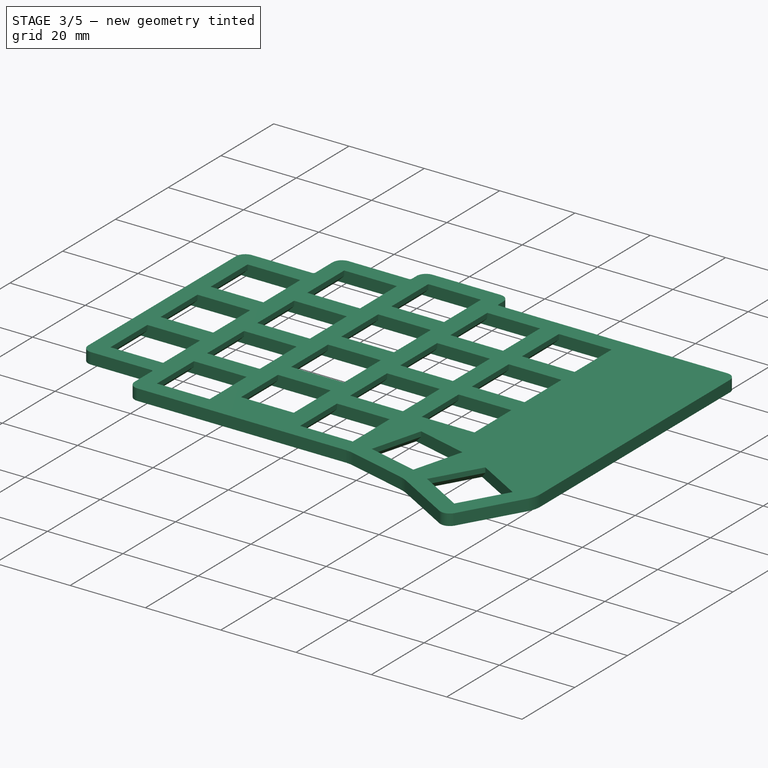
[diagram: stage 3 of 5 — iso view after this stage's code; geometry added in this stage tinted green]
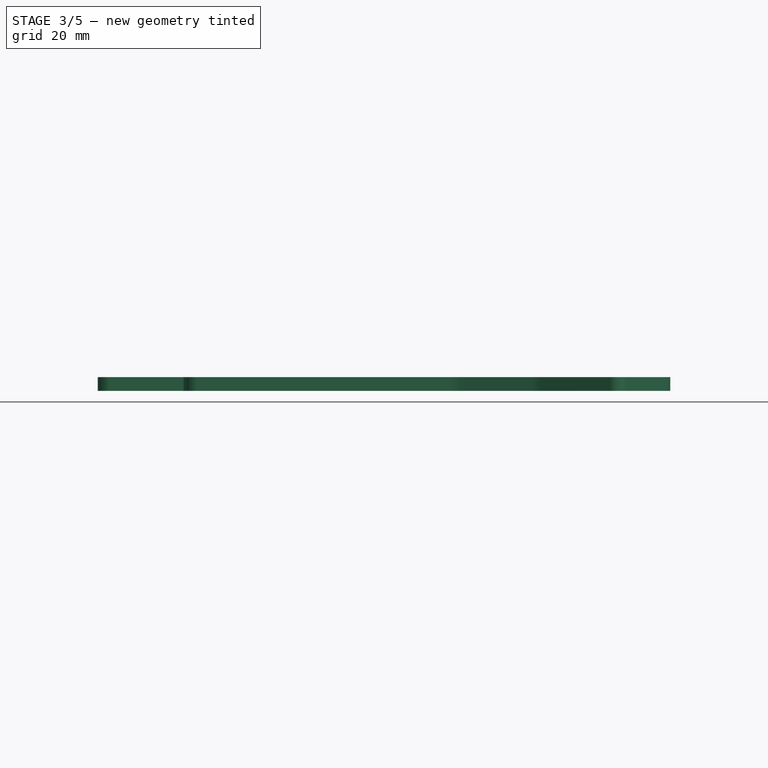
[diagram: stage 3 of 5 — front view after this stage's code; geometry added in this stage tinted green]
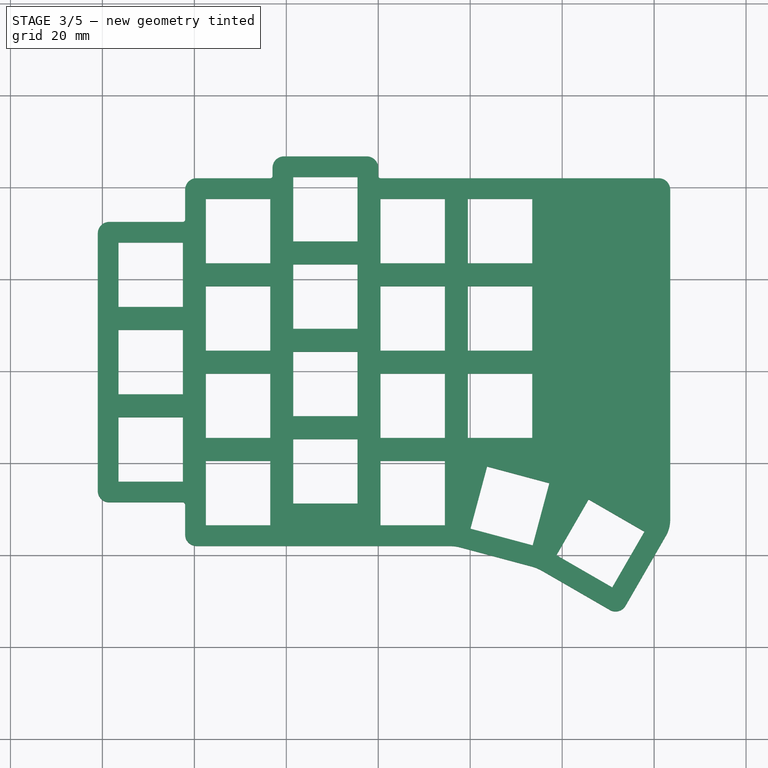
[diagram: stage 3 of 5 — top view after this stage's code; geometry added in this stage tinted green]
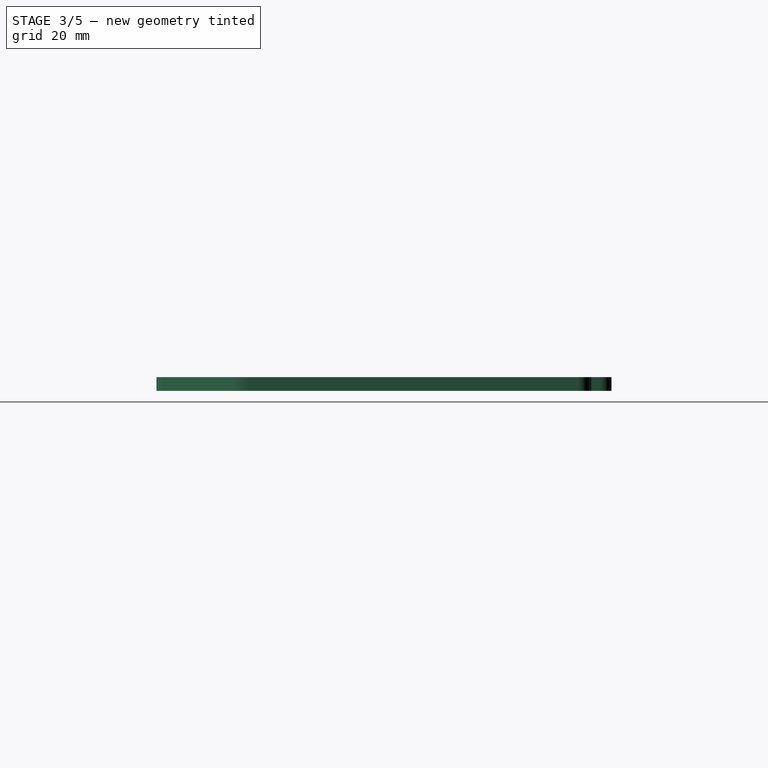
[diagram: stage 3 of 5 — right view after this stage's code; geometry added in this stage tinted green]
FEATURE [PartDesign::Fillet] Fillet008
  Base = -> Chamfer [Edge492,Edge488,Edge483,Edge479,Edge149,Edge153]
  BaseFeature = -> Chamfer
  Radius = 1.65
  Refine = true
  SupportTransform = false
  Suppressed = false
  UseAllEdges = false
FEATURE [PartDesign::Chamfer] Chamfer014
  Angle = 45
  Base = -> Fillet008 [Edge224,Edge227,Edge5]
  BaseFeature = -> Fillet008
  ChamferType = 0
  FlipDirection = false
  Refine = true
  Size = 0.5
  Size2 = 1
  SupportTransform = false
  Suppressed = false
  UseAllEdges = false
FEATURE [PartDesign::Chamfer] Chamfer015
  Angle = 45
  Base = -> Chamfer014 [Edge574,Edge580,Edge576,Edge578]
  BaseFeature = -> Chamfer014
  ChamferType = 0
  FlipDirection = false
  Refine = true
  Size = 0.3
  Size2 = 1
  SupportTransform = false
  Suppressed = false
  UseAllEdges = false
FEATURE [PartDesign::SubShapeBinder] Binder003
  BindCopyOnChange = 0
  BindMode = 0
  ClaimChildren = false
  Context = -> Body002 [Binder003.]
  Fuse = false
  MakeFace = true
  OffsetFill = false
  OffsetIntersection = false
  OffsetJoinType = 0
  OffsetOpenResult = false
  PartialLoad = false
  Placement = pos=(0,0,0.1) rot=(0,0,1;0rad)
  Refine = true
  Relative = true
  Support = -> [Body[Pocket.Face62]]
  _Version = 2
FEATURE [PartDesign::Pad] Pad003
  Direction = (0,0,1)
  Length = 3
  Length2 = 10
  Placement = pos=(0,0,0.1) rot=(0,0,1;0rad)
  Profile = -> Binder003
  Refine = true
  Suppressed = false
  Type = 0
FEATURE [Sketcher::SketchObject] Sketch011
  ArcFitTolerance = 1e-06
  AttachmentSupport = -> [Pocket001]
  ExternalGeometry = -> [Sketch001]
  FullyConstrained = true
  MakeInternals = false
  MapMode = 5
  Placement = pos=(0,0,5.3) rot=(1,0,0;3.14159rad)
  sketch-geometry (8):
    g0: Circle CenterX=57 CenterY=19 CenterZ=0 NormalX=0 NormalY=0 NormalZ=1 AngleXU=0 Radius=2.25
    g1: Circle CenterX=0.5 CenterY=19 CenterZ=0 NormalX=0 NormalY=0 NormalZ=1 AngleXU=0 Radius=2.25
    g2: Circle CenterX=0.5 CenterY=57 CenterZ=0 NormalX=0 NormalY=0 NormalZ=1 AngleXU=0 Radius=2.25
    g3: LineSegment [constr] StartX=57 StartY=19 StartZ=0 EndX=54.5 EndY=21.5 EndZ=0
    g4: LineSegment [constr] StartX=57 StartY=19 StartZ=0 EndX=59.5 EndY=16.5 EndZ=0
    g5: Circle CenterX=57 CenterY=57 CenterZ=0 NormalX=0 NormalY=0 NormalZ=1 AngleXU=0 Radius=2.25
    g6: LineSegment [constr] StartX=54.5 StartY=59.5 StartZ=0 EndX=57 EndY=57 EndZ=0
    g7: LineSegment [constr] StartX=57 StartY=57 StartZ=0 EndX=59.5 EndY=54.5 EndZ=0
  constraints (20):
    c: Diameter(g0) = 4.5
    c: Equal(g2,g1)
    c: Equal(g1,g0)
    c: Coincident(g3,g0)
    c: Coincident(g3,g-4)
    c: Coincident(g4,g0)
    c: Coincident(g4,g-3)
    c: Equal(g4,g3)
    c: Parallel(g4,g3)
    c: Equal(g5,g2)
    c: Coincident(g6,g-5)
    c: Coincident(g6,g5)
    c: Coincident(g7,g5)
    c: Coincident(g7,g-6)
    c: Equal(g7,g6)
    c: Parallel(g7,g6)
    c: DistanceX(g1) = 0.5
    c: DistanceY(g1) = 19
    c: DistanceX(g2) = 0.5
    c: DistanceY(g2) = 57
FEATURE [PartDesign::Chamfer] Chamfer016
  Angle = 45
  Base = -> Pad003 [Edge267,Edge273,Edge279,Edge309,Edge315,Edge321,Edge327,Edge303,Edge297,Edge291,Edge285,Edge243,Edge237,Edge231,Edge255,Edge261,Edge225,Edge249,Edge213,Edge219,Edge207,Edge201,Edge195,Edge147,Edge189,Edge141,Edge123,Edge117,Edge111,Edge105,Edge93,Edge99,Edge129,Edge135,Edge153,Edge159,Edge173,Edge168,Edge185,Edge180]
  BaseFeature = -> Pad003
  ChamferType = 0
  FlipDirection = false
  Placement = pos=(0,0,0.1) rot=(0,0,1;0rad)
  Refine = true
  Size = 1.7
  Size2 = 1
  SupportTransform = false
  Suppressed = false
  UseAllEdges = false
FEATURE [PartDesign::Pocket] Pocket011
  BaseFeature = -> Chamfer016
  Direction = (0,0,1)
  Length = 4
  Length2 = 5
  Placement = pos=(0,0,0.1) rot=(0,0,1;0rad)
  Profile = -> Sketch011
  ReferenceAxis = -> Sketch011 [N_Axis]
  Refine = true
  Suppressed = false
  Type = 0
FEATURE [PartDesign::Fillet] Fillet009
  Base = -> Pocket011 [Face160,Face158,Face159,Face157]
  BaseFeature = -> Pocket011
  Placement = pos=(0,0,0.1) rot=(0,0,1;0rad)
  Radius = 1.899
  Refine = true
  SupportTransform = false
  Suppressed = false
  UseAllEdges = false
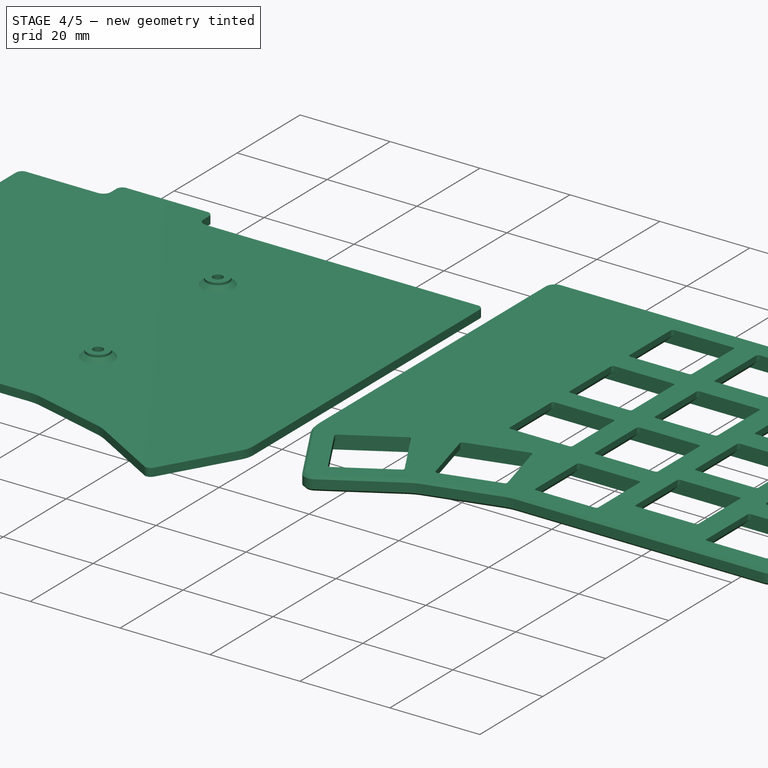
[diagram: stage 4 of 5 — iso view after this stage's code; geometry added in this stage tinted green]
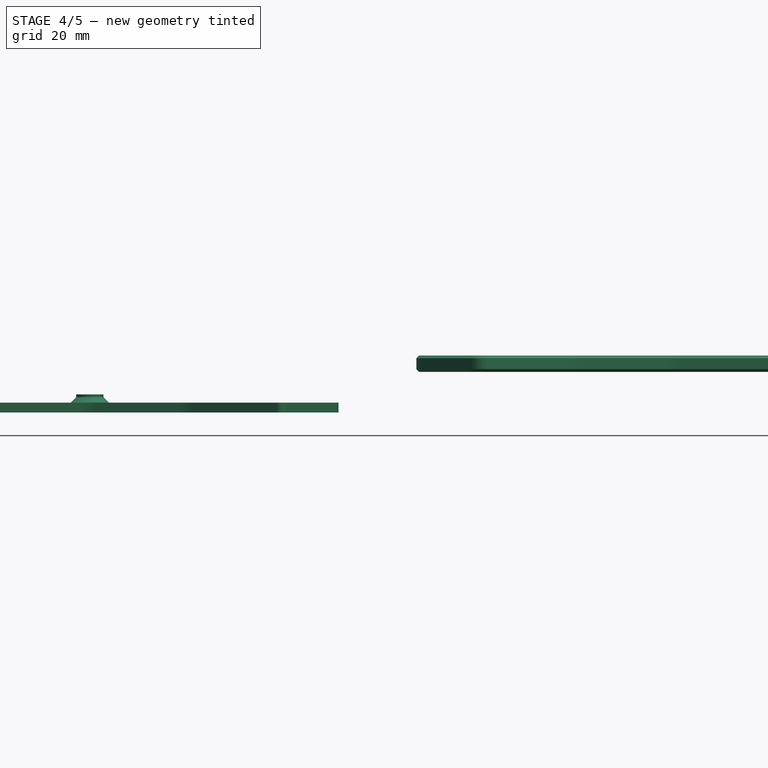
[diagram: stage 4 of 5 — front view after this stage's code; geometry added in this stage tinted green]
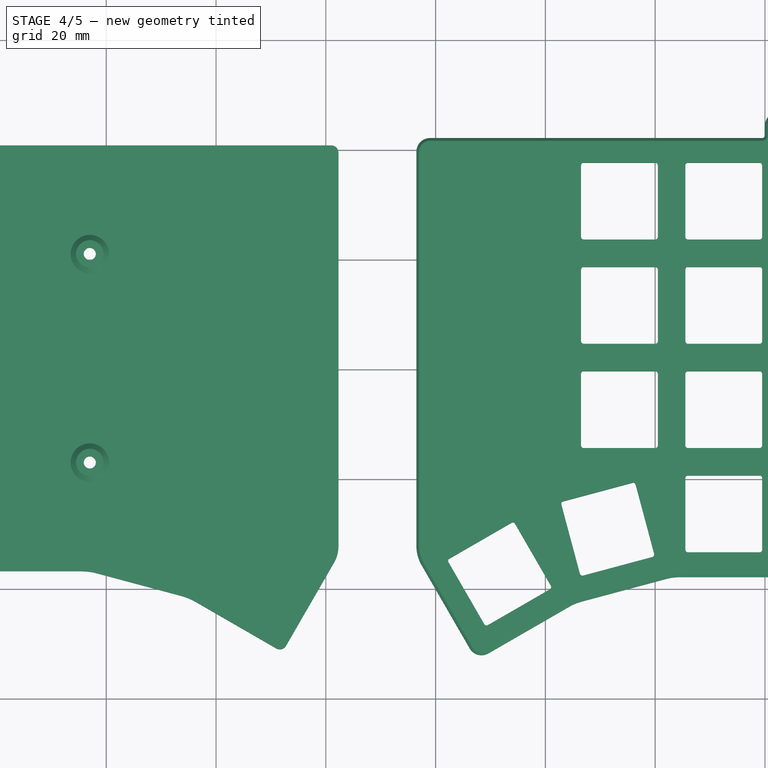
[diagram: stage 4 of 5 — top view after this stage's code; geometry added in this stage tinted green]
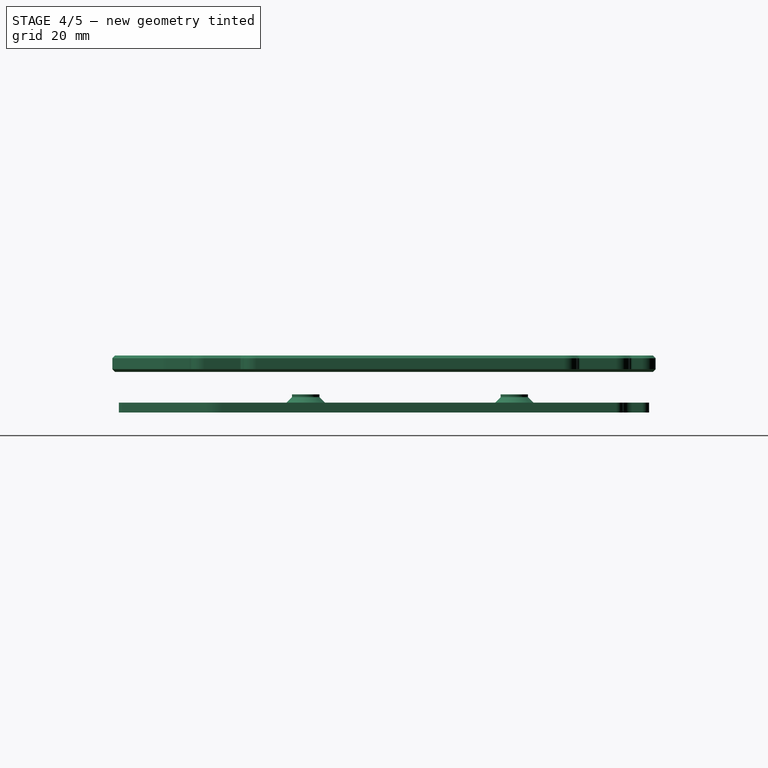
[diagram: stage 4 of 5 — right view after this stage's code; geometry added in this stage tinted green]
FEATURE [PartDesign::Pad] Pad004  label="Pad001"
  Direction = (0,0,1)
  Length = 1.8
  Length2 = 10
  Placement = pos=(0,0,-5.3) rot=(0,0,1;0rad)
  Profile = -> Binder001
  Refine = true
  Suppressed = false
  Type = 0
FEATURE [PartDesign::Pad] Pad002
  BaseFeature = -> Pad004
  Direction = (0,0,-1)
  Length = 1.5
  Length2 = 10
  Placement = pos=(0,0,-5.3) rot=(0,0,1;0rad)
  Profile = -> Sketch007
  ReferenceAxis = -> Sketch007 [N_Axis]
  Refine = true
  Reversed = true
  Suppressed = false
  Type = 0
FEATURE [PartDesign::Pocket] Pocket007
  BaseFeature = -> Pad002
  Direction = (0,0,-1)
  Length = 5
  Length2 = 5
  Midplane = true
  Placement = pos=(0,0,-5.3) rot=(0,0,1;0rad)
  Profile = -> Binder002
  Refine = true
  Suppressed = false
  Type = 1
FEATURE [PartDesign::Chamfer] Chamfer006
  Angle = 45
  Base = -> Pocket007 [Edge69,Edge71,Edge70,Edge72]
  BaseFeature = -> Pocket007
  ChamferType = 0
  FlipDirection = false
  Placement = pos=(0,0,-5.3) rot=(0,0,1;0rad)
  Refine = true
  Size = 1
  Size2 = 1
  SupportTransform = false
  Suppressed = false
  UseAllEdges = false
FEATURE [PartDesign::Pocket] Pocket009
  BaseFeature = -> Chamfer006
  Direction = (0,0,1)
  Length = 1.65
  Length2 = 5
  Placement = pos=(0,0,-5.3) rot=(0,0,1;0rad)
  Profile = -> Sketch009
  ReferenceAxis = -> Sketch009 [N_Axis]
  Refine = true
  Suppressed = false
  Type = 0
FEATURE [PartDesign::Fillet] Fillet013
  Base = -> Fillet009 [Edge272,Edge260,Edge239,Edge227,Edge202,Edge128,Edge222,Edge332,Edge284,Edge296,Edge407,Edge426,Edge412,Edge395,Edge344,Edge320,Edge301,Edge356,Edge371,Edge376,Edge263,Edge251,Edge292,Edge403,Edge435,Edge421,Edge391,Edge280,Edge248,Edge236,Edge328,Edge340,Edge385,Edge211,Edge218,Edge316,Edge367,Edge352,Edge310,Edge132,+40 more]
  BaseFeature = -> Fillet009
  Placement = pos=(0,0,0.1) rot=(0,0,1;0rad)
  Radius = 0.5
  Refine = true
  SupportTransform = false
  Suppressed = false
  UseAllEdges = false
FEATURE [PartDesign::Chamfer] Chamfer017
  Angle = 45
  Base = -> Fillet013 [Edge162,Edge35]
  BaseFeature = -> Fillet013
  ChamferType = 0
  FlipDirection = false
  Placement = pos=(0,0,0.1) rot=(0,0,1;0rad)
  Refine = true
  Size = 0.5
  Size2 = 1
  SupportTransform = false
  Suppressed = false
  UseAllEdges = false
FEATURE [PartDesign::Body] Body002  label="Plate"
  AllowCompound = false
  Group = -> [Binder003,Pad003,Sketch011,Chamfer016,Pocket011,Fillet009,Fillet013,Chamfer017]
  Origin = -> Origin002
  Tip = -> Chamfer017
FEATURE [Part::Mirroring] Part__Mirroring002  label="Plate-Mirrored"
  Base = (110,-42.7423,8.89998)
  Normal = (1,-3e-16,-3.57628e-07)
  Source = -> Body002
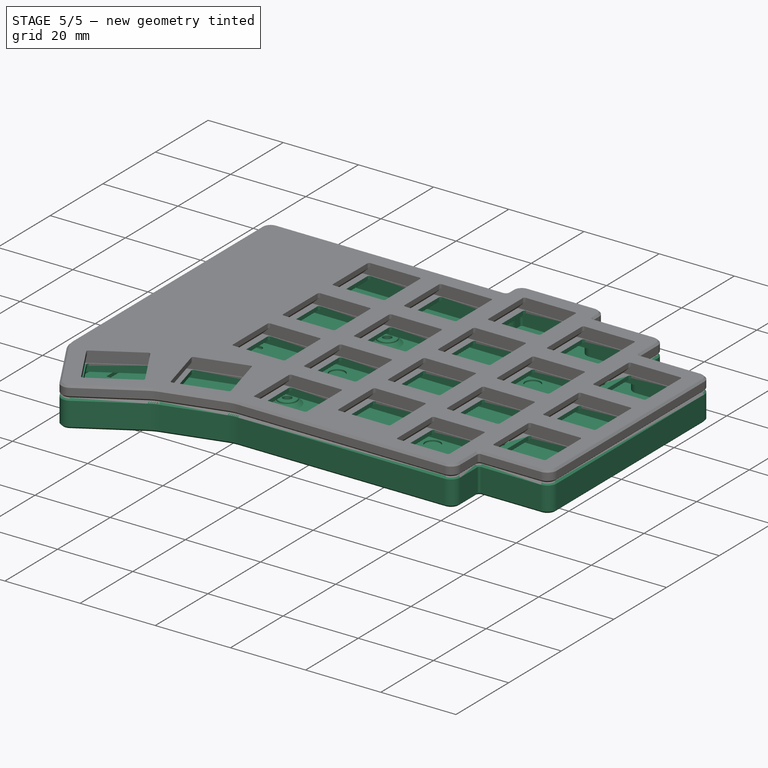
[diagram: stage 5 of 5 — iso view after this stage's code; geometry added in this stage tinted green]
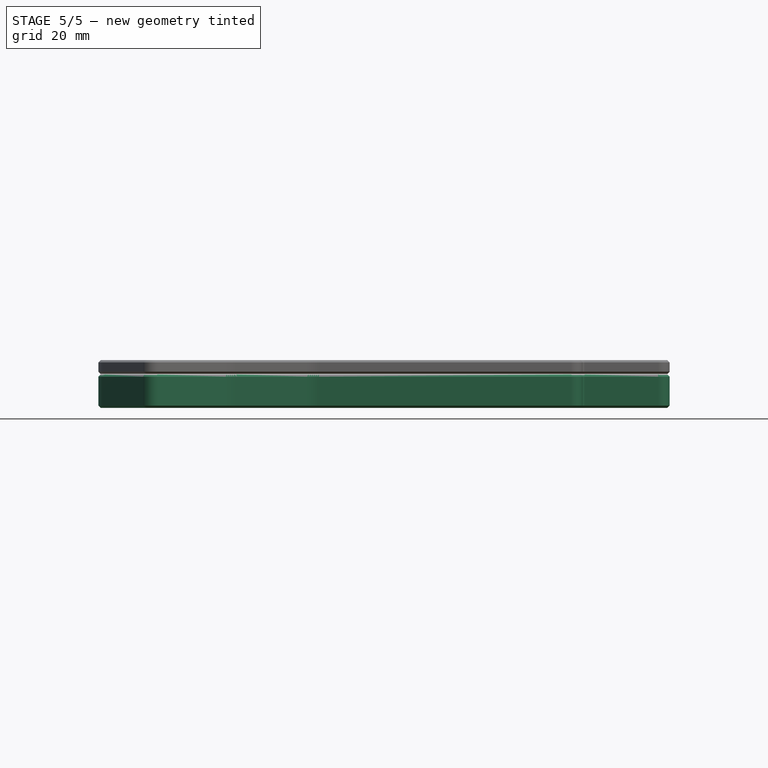
[diagram: stage 5 of 5 — front view after this stage's code; geometry added in this stage tinted green]
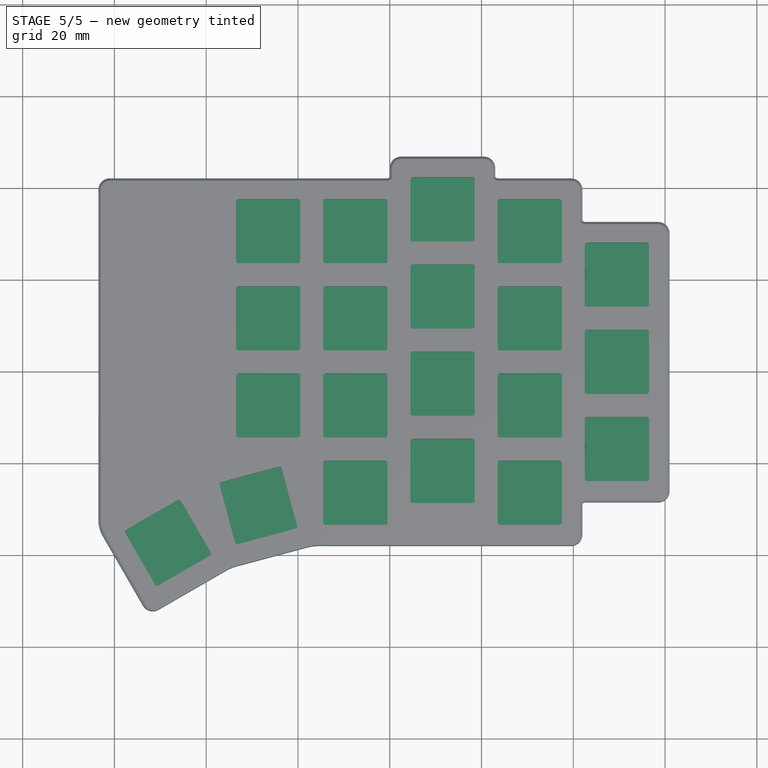
[diagram: stage 5 of 5 — top view after this stage's code; geometry added in this stage tinted green]
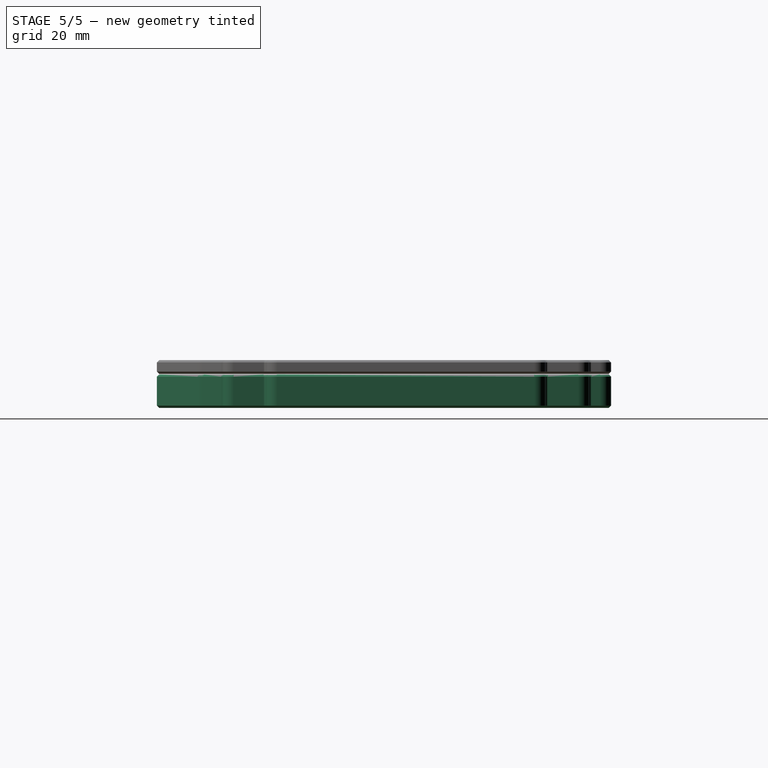
[diagram: stage 5 of 5 — right view after this stage's code; geometry added in this stage tinted green]
FEATURE [PartDesign::Body] Body  label="Top"
  AllowCompound = false
  Group = -> [Sketch,Pad,Thickness,Fillet,Fillet001,Fillet002,Fillet003,Fillet004,Fillet005,Sketch001,Pocket,Chamfer013,Fillet007,Binder,Pocket001,Sketch002,Pocket002,Sketch003,Pocket003,Sketch004,Pocket004,Chamfer,Fillet008,Chamfer014,Chamfer015]
  Origin = -> Origin
  Tip = -> Chamfer015
FEATURE [Part::Mirroring] Part__Mirroring  label="Top-Mirrored"
  Base = (110,0,0)
  Normal = (1,0,0)
  Source = -> Body
FEATURE [PartDesign::Pocket] Pocket010
  BaseFeature = -> Pocket009
  Direction = (0,1e-16,1)
  Length = 0.9
  Length2 = 5
  Placement = pos=(0,0,-5.3) rot=(0,0,1;0rad)
  Profile = -> Sketch010
  ReferenceAxis = -> Sketch010 [N_Axis]
  Refine = true
  Suppressed = false
  Type = 0
FEATURE [PartDesign::Chamfer] Chamfer010
  Angle = 45
  Base = -> Pocket010 [Edge143,Edge117,Edge107,Edge127]
  BaseFeature = -> Pocket010
  ChamferType = 0
  FlipDirection = false
  Placement = pos=(0,0,-5.3) rot=(0,0,1;0rad)
  Refine = true
  Size = 0.3
  Size2 = 1
  SupportTransform = false
  Suppressed = false
  UseAllEdges = false
FEATURE [Sketcher::SketchObject] Sketch012
  ArcFitTolerance = 1e-06
  AttachmentSupport = -> [Chamfer010]
  FullyConstrained = true
  MakeInternals = false
  MapMode = 5
  Placement = pos=(0,0,1.8) rot=(0,0,1;0rad)
  sketch-geometry (16):
    g0: LineSegment StartX=78.5 StartY=-36.25 StartZ=0 EndX=98.5 EndY=-36.25 EndZ=0
    g1: LineSegment StartX=97.25 StartY=-68.25 StartZ=0 EndX=88.25 EndY=-68.25 EndZ=0
    g2: LineSegment StartX=88.25 StartY=-68.25 StartZ=0 EndX=88.25 EndY=-63.25 EndZ=0
    g3: LineSegment StartX=88.25 StartY=-63.25 StartZ=0 EndX=78.5 EndY=-63.25 EndZ=0
    g4: LineSegment StartX=77.5 StartY=-62.25 StartZ=0 EndX=77.5 EndY=-37.25 EndZ=0
    g5: LineSegment StartX=99.5 StartY=-37.25 StartZ=0 EndX=99.5 EndY=-62.25 EndZ=0
    g6: LineSegment StartX=98.5 StartY=-63.25 StartZ=0 EndX=97.25 EndY=-63.25 EndZ=0
    g7: LineSegment StartX=97.25 StartY=-63.25 StartZ=0 EndX=97.25 EndY=-68.25 EndZ=0
    g8: ArcOfCircle CenterX=78.5 CenterY=-37.25 CenterZ=0 NormalX=0 NormalY=0 NormalZ=1 AngleXU=0 Radius=1 StartAngle=1.5708 EndAngle=3.14159
    g9: GeomPoint [constr] X=77.5 Y=-36.25 Z=0
    g10: ArcOfCircle CenterX=98.5 CenterY=-37.25 CenterZ=0 NormalX=0 NormalY=0 NormalZ=1 AngleXU=0 Radius=1 StartAngle=2.9e-15 EndAngle=1.5708
    g11: GeomPoint [constr] X=99.5 Y=-36.25 Z=0
    g12: ArcOfCircle CenterX=98.5 CenterY=-62.25 CenterZ=0 NormalX=0 NormalY=0 NormalZ=1 AngleXU=0 Radius=1 StartAngle=4.71239 EndAngle=6.28319
    g13: GeomPoint [constr] X=99.5 Y=-63.25 Z=0
    g14: ArcOfCircle CenterX=78.5 CenterY=-62.25 CenterZ=0 NormalX=0 NormalY=0 NormalZ=1 AngleXU=0 Radius=1 StartAngle=3.14159 EndAngle=4.71239
    g15: GeomPoint [constr] X=77.5 Y=-63.25 Z=0
  constraints (40):
    c: Horizontal(g0)
    c: Coincident(g1,g2)
    c: Vertical(g2)
    c: Coincident(g2,g3)
    c: Horizontal(g3)
    c: Vertical(g4)
    c: Horizontal(g1)
    c: Distance(g15,g9) = 27
    c: Distance(g11,g9) = 22
    c: Vertical(g5)
    c: Horizontal(g6)
    c: Coincident(g6,g7)
    c: Coincident(g7,g1)
    c: Vertical(g7)
    c: Distance(g2) = 5
    c: Equal(g7,g2)
    c: Distance(g1) = 9
    c: Distance(g6,g13) = 2.25
    c: DistanceX(g9) = 77.5
    c: DistanceY(g9) = -36.25
    c: PointOnObject(g9,g0)
    c: PointOnObject(g9,g4)
    c: Tangent(g0,g8) = 1.5708
    c: Tangent(g4,g8) = 1.5708
    c: Distance(g8,g0) = 1
    c: PointOnObject(g11,g0)
    c: PointOnObject(g11,g5)
    c: Tangent(g0,g10) = 1.5708
    c: Tangent(g5,g10) = 1.5708
    c: PointOnObject(g13,g5)
    c: PointOnObject(g13,g6)
    c: Tangent(g5,g12) = 1.5708
    c: Tangent(g6,g12) = 1.5708
    c: PointOnObject(g15,g3)
    c: PointOnObject(g15,g4)
    c: Tangent(g3,g14) = 1.5708
    c: Tangent(g4,g14) = 1.5708
    c: Equal(g14,g12)
    c: Equal(g12,g8)
    c: Equal(g8,g10)
FEATURE [PartDesign::Pocket] Pocket012
  BaseFeature = -> Chamfer010
  Direction = (0,0,-1)
  Length = 0.9
  Length2 = 5
  Placement = pos=(0,0,-5.3) rot=(0,0,1;0rad)
  Profile = -> Sketch012
  ReferenceAxis = -> Sketch012 [N_Axis]
  Refine = true
  Suppressed = false
  Type = 0
FEATURE [PartDesign::Fillet] Fillet011
  Base = -> Pocket012 [Edge289]
  BaseFeature = -> Pocket012
  Placement = pos=(0,0,-5.3) rot=(0,0,1;0rad)
  Radius = 0.45
  Refine = true
  SupportTransform = false
  Suppressed = false
  UseAllEdges = false
FEATURE [Sketcher::SketchObject] Sketch013
  ArcFitTolerance = 1e-06
  AttachmentSupport = -> [Fillet011]
  FullyConstrained = true
  MakeInternals = false
  MapMode = 5
  Placement = pos=(0,0,1.8) rot=(0,0,1;0rad)
  sketch-geometry (6):
    g0: Circle CenterX=38 CenterY=-56 CenterZ=0 NormalX=0 NormalY=0 NormalZ=1 AngleXU=0 Radius=2.05
    g1: Circle CenterX=0 CenterY=-38 CenterZ=0 NormalX=0 NormalY=0 NormalZ=1 AngleXU=0 Radius=2.05
    g2: Circle CenterX=19 CenterY=-56 CenterZ=0 NormalX=0 NormalY=0 NormalZ=1 AngleXU=0 Radius=2.05
    g3: Circle CenterX=38 CenterY=-18 CenterZ=0 NormalX=0 NormalY=0 NormalZ=1 AngleXU=0 Radius=2.05
    g4: Circle CenterX=57 CenterY=-38 CenterZ=0 NormalX=0 NormalY=0 NormalZ=1 AngleXU=0 Radius=2.05
    g5: Circle CenterX=19 CenterY=-18 CenterZ=0 NormalX=0 NormalY=0 NormalZ=1 AngleXU=0 Radius=2.05
  constraints (18):
    c: Diameter(g5) = 4.1
    c: DistanceX(g5) = 19
    c: DistanceY(g5) = -18
    c: DistanceX(g3) = 38
    c: DistanceY(g3) = -18
    c: DistanceX(g1) = 0
    c: DistanceY(g1) = -38
    c: DistanceX(g4) = 57
    c: DistanceY(g4) = -38
    c: DistanceX(g2) = 19
    c: DistanceY(g2) = -56
    c: DistanceX(g0) = 38
    c: DistanceY(g0) = -56
    c: Equal(g4,g3)
    c: Equal(g3,g1)
    c: Equal(g1,g2)
    c: Equal(g2,g0)
    c: Equal(g0,g5)
FEATURE [PartDesign::Pocket] Pocket013
  BaseFeature = -> Fillet011
  Direction = (0,0,-1)
  Length = 0.4
  Length2 = 5
  Placement = pos=(0,0,-5.3) rot=(0,0,1;0rad)
  Profile = -> Sketch013
  ReferenceAxis = -> Sketch013 [N_Axis]
  Refine = true
  Suppressed = false
  Type = 0
FEATURE [PartDesign::Fillet] Fillet012
  Base = -> Pocket013 [Face117,Face115,Face118,Face116]
  BaseFeature = -> Pocket013
  Placement = pos=(0,0,-5.3) rot=(0,0,1;0rad)
  Radius = 0.3
  Refine = true
  SupportTransform = false
  Suppressed = false
  UseAllEdges = false
FEATURE [PartDesign::Body] Body001  label="Bottom"
  AllowCompound = false
  Group = -> [Binder001,Pad004,Sketch007,Pad002,Binder002,Pocket007,Chamfer006,Sketch009,Pocket009,Sketch010,Pocket010,Chamfer010,Sketch012,Pocket012,Fillet011,Sketch013,Pocket013,Fillet012]
  Origin = -> Origin001
  Tip = -> Fillet012
FEATURE [Part::Mirroring] Part__Mirroring001  label="Bottom-Mirrored"
  Base = (110,-42.7405,1.64997)
  Normal = (1,-3e-16,-3.57628e-07)
  Source = -> Body001
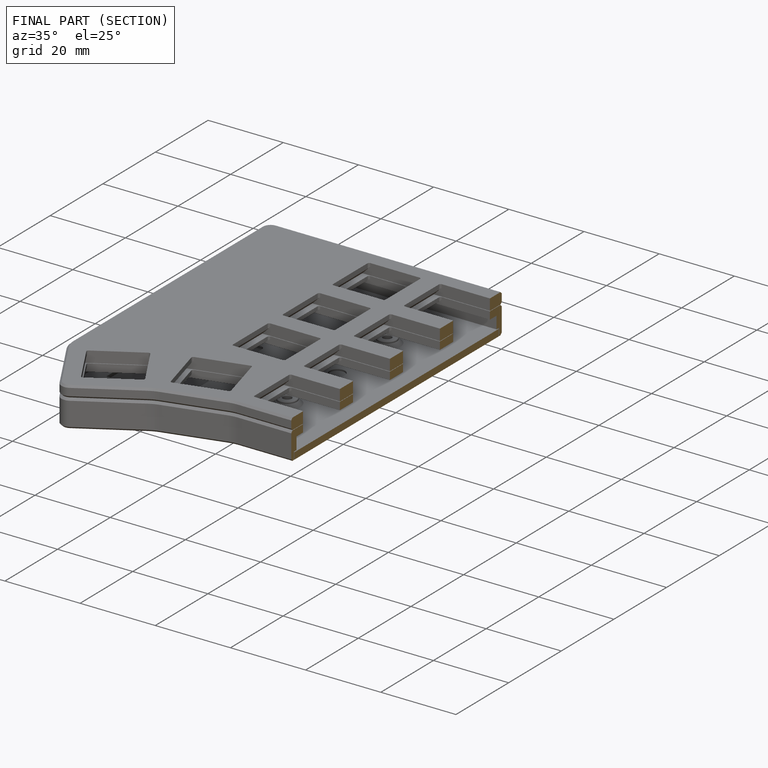
[diagram: finished part — half-section view (interior)]
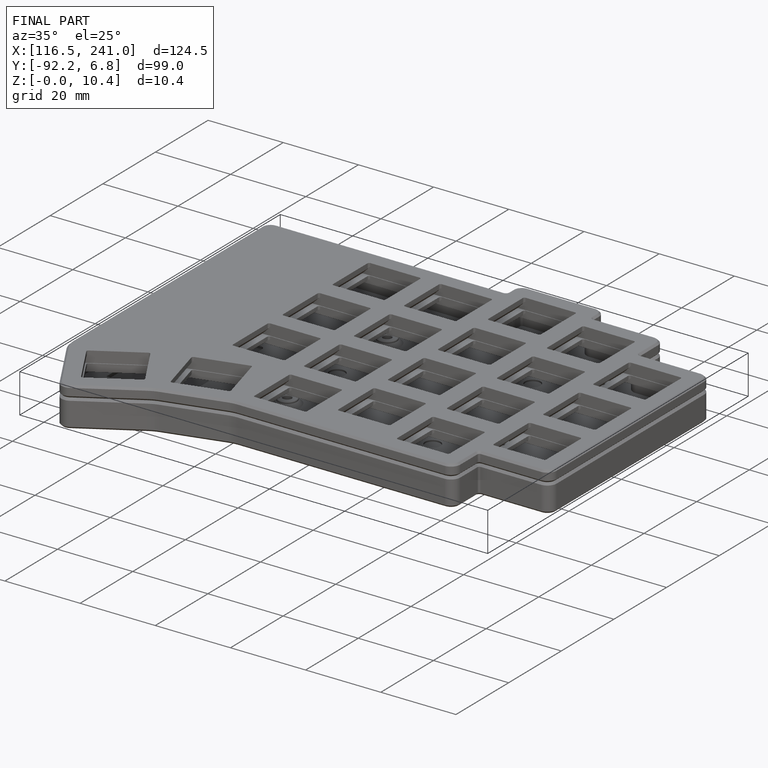
[diagram: finished part — iso view with bounding-box wireframe]
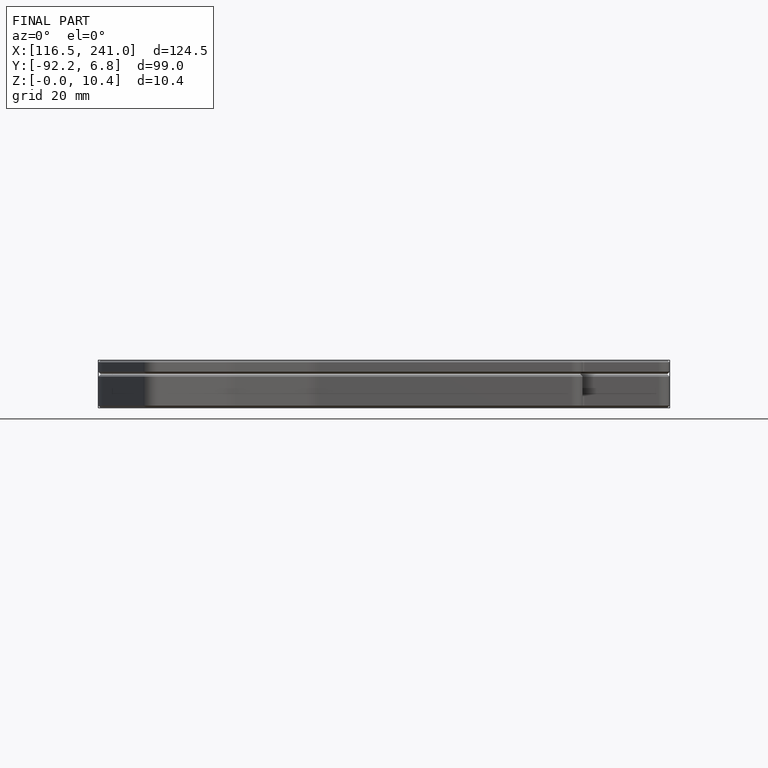
[diagram: finished part — front view with bounding-box wireframe]
